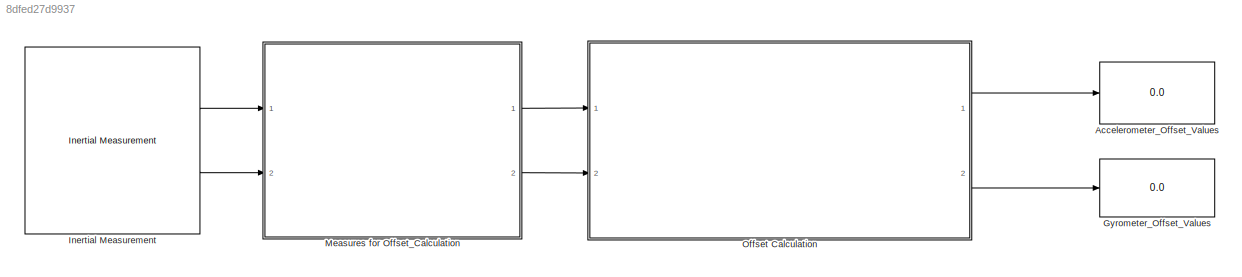
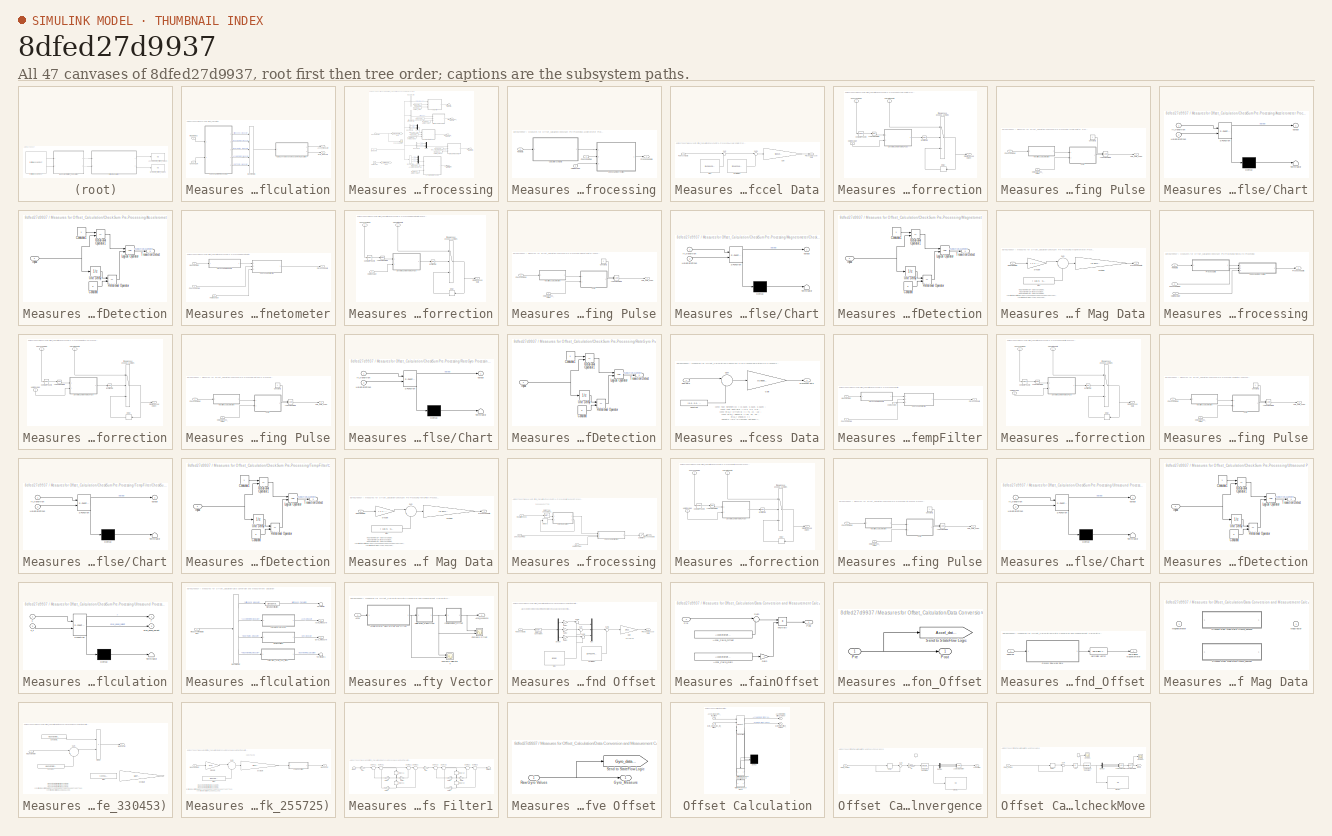
[diagram: thumbnail index - all 47 canvases of the model, root first then tree order]
MODEL slx_8dfed27d9937
KIND model
BLOCK [Display] Accelerometer_Offset_Values
  Decimation = 3
  Ports = [1]
BLOCK [Display] Gyrometer_Offset_Values
  Decimation = 3
  Ports = [1]
BLOCK [Reference] Inertial Measurement  REF=AR_Drone_2_Library/Inertial Measurement
  Ports = [0, 2]
  SourceBlock = AR_Drone_2_Library/Inertial Measurement
  Ts = 1/400
BLOCK [SubSystem] Measures for Offset_Calculation
  AncestorBlock = Navigation_KF_Lib/Navigation
  Ports = [2, 2]
  RequestExecContextInheritance = off
BLOCK [Outport] Measures for Offset_Calculation/Accel_Measure
  IconDisplay = Port number
BLOCK [BusCreator] Measures for Offset_Calculation/Bus Creator1
  DisplayOption = bar
  Inputs = 5
  Ports = [5, 1]
BLOCK [Inport] Measures for Offset_Calculation/CheckSum
  IconDisplay = Port number
  Port = 2
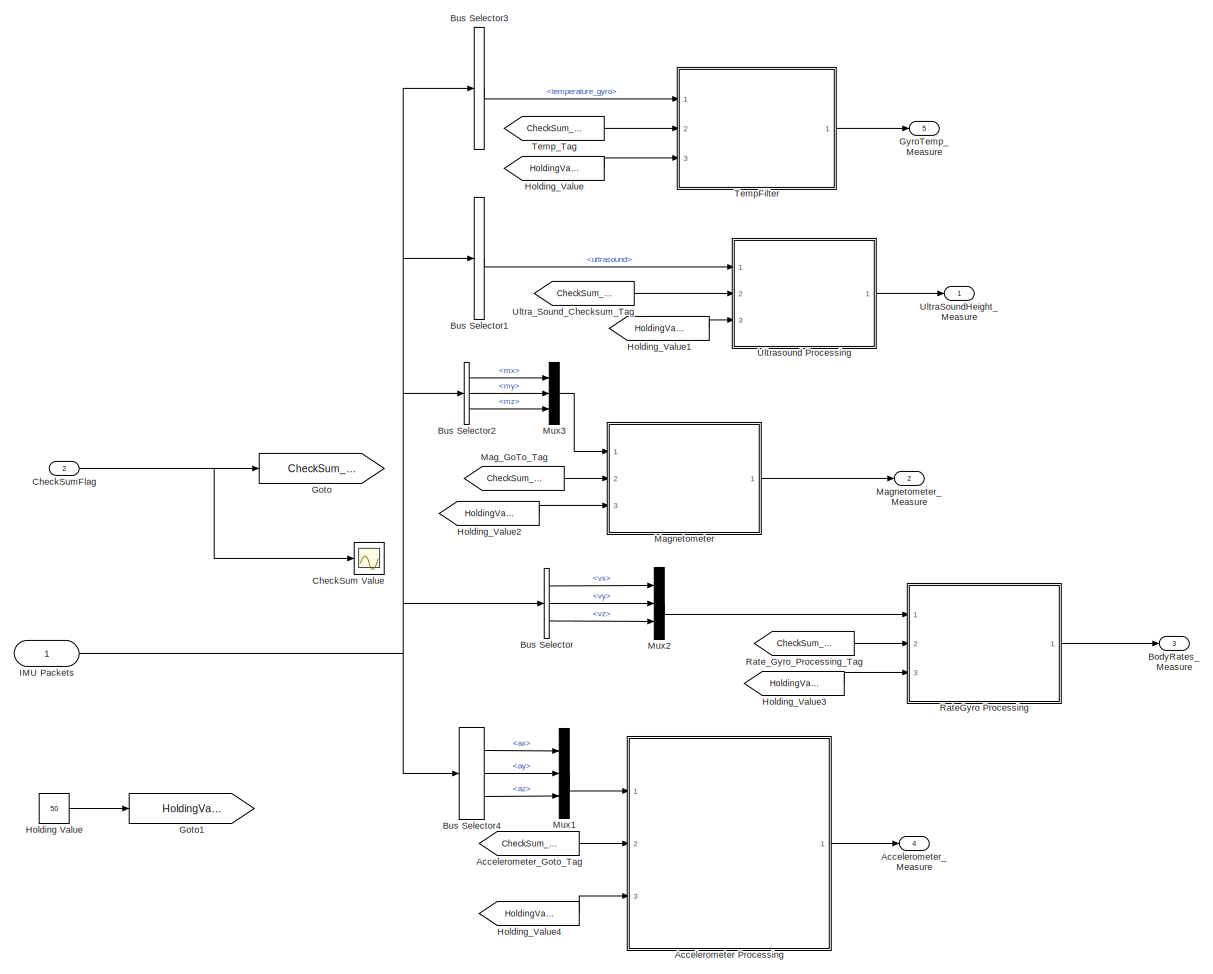
[diagram: Measures for Offset_Calculation/CheckSum Pre-Processing - part 1/1, most of the canvas]
BLOCK [SubSystem] Measures for Offset_Calculation/CheckSum Pre-Processing
  Ports = [2, 5]
  RTWSystemCode = Inline
  RequestExecContextInheritance = off
  TreatAsAtomicUnit = on
BLOCK [SubSystem] Measures for Offset_Calculation/CheckSum Pre-Processing/Accelerometer Processing
  Ports = [3, 1]
  RequestExecContextInheritance = off
BLOCK [SubSystem] Measures for Offset_Calculation/CheckSum Pre-Processing/Accelerometer Processing/Calculate Accel Data
  Commented = through
  Ports = [1, 1]
  RequestExecContextInheritance = off
BLOCK [Constant] Measures for Offset_Calculation/CheckSum Pre-Processing/Accelerometer Processing/Calculate Accel Data/Bias
  Value = [0 4096 4096]
BLOCK [Gain] Measures for Offset_Calculation/CheckSum Pre-Processing/Accelerometer Processing/Calculate Accel Data/Gain
  Gain = [0.001953125, 0.001953125, 0.001953125]
  OutDataTypeStr = Inherit: Inherit via internal rule
  ParamDataTypeStr = Inherit: Inherit via internal rule
  SaturateOnIntegerOverflow = off
BLOCK [Constant] Measures for Offset_Calculation/CheckSum Pre-Processing/Accelerometer Processing/Calculate Accel Data/Neutral Bias
  Value = [2048 2048 2048]
BLOCK [Outport] Measures for Offset_Calculation/CheckSum Pre-Processing/Accelerometer Processing/Calculate Accel Data/Processed Accel Data
  IconDisplay = Port number
BLOCK [Inport] Measures for Offset_Calculation/CheckSum Pre-Processing/Accelerometer Processing/Calculate Accel Data/Raw Accel Data
  IconDisplay = Port number
BLOCK [Sum] Measures for Offset_Calculation/CheckSum Pre-Processing/Accelerometer Processing/Calculate Accel Data/Sum
  IconShape = round
  InputSameDT = off
  Inputs = |-+
  OutDataTypeStr = Inherit: Inherit via internal rule
  Ports = [2, 1]
  SaturateOnIntegerOverflow = off
BLOCK [Sum] Measures for Offset_Calculation/CheckSum Pre-Processing/Accelerometer Processing/Calculate Accel Data/Sum1
  IconShape = round
  InputSameDT = off
  Inputs = |+-
  OutDataTypeStr = Inherit: Inherit via internal rule
  Ports = [2, 1]
  SaturateOnIntegerOverflow = off
BLOCK [SubSystem] Measures for Offset_Calculation/CheckSum Pre-Processing/Accelerometer Processing/CheckSum Correction
  Ports = [3, 1]
  RequestExecContextInheritance = off
BLOCK [Inport] Measures for Offset_Calculation/CheckSum Pre-Processing/Accelerometer Processing/CheckSum Correction/CalculatedData
  IconDisplay = Port number
BLOCK [Inport] Measures for Offset_Calculation/CheckSum Pre-Processing/Accelerometer Processing/CheckSum Correction/CheckSumFlag
  IconDisplay = Port number
  Port = 2
BLOCK [Reference] Measures for Offset_Calculation/CheckSum Pre-Processing/Accelerometer Processing/CheckSum Correction/Compare To Zero  REF=simulink/Logic and Bit
Operations/Compare
To Zero
  OutDataTypeStr = boolean
  Ports = [1, 1]
  SourceBlock = simulink/Logic and Bit\nOperations/Compare\nTo Zero
  SourceType = Compare To Zero
  ZeroCross = on
  relop = >
BLOCK [Delay] Measures for Offset_Calculation/CheckSum Pre-Processing/Accelerometer Processing/CheckSum Correction/Delay
  DelayLength = 3
  InitialCondition = 0
  InputPortMap = u0
  Ports = [1, 1]
BLOCK [SubSystem] Measures for Offset_Calculation/CheckSum Pre-Processing/Accelerometer Processing/CheckSum Correction/Generate Sample Holding Pulse
  Ports = [2, 1]
  RequestExecContextInheritance = off
BLOCK [SubSystem] Measures for Offset_Calculation/CheckSum Pre-Processing/Accelerometer Processing/CheckSum Correction/Generate Sample Holding Pulse/Chart
  ErrorFcn = Stateflow.Translate.translate
  PermitHierarchicalResolution = ExplicitOnly
  Ports = [2, 1]
  RequestExecContextInheritance = off
  SFBlockType = Chart
  TreatAsAtomicUnit = on
BLOCK [Demux] Measures for Offset_Calculation/CheckSum Pre-Processing/Accelerometer Processing/CheckSum Correction/Generate Sample Holding Pulse/Chart/ Demux 
  Outputs = 1
  Ports = [1, 1]
BLOCK [S-Function] Measures for Offset_Calculation/CheckSum Pre-Processing/Accelerometer Processing/CheckSum Correction/Generate Sample Holding Pulse/Chart/ SFunction 
  EnableBusSupport = on
  FunctionName = sf_sfun
  PortCounts = [2 2]
  Ports = [2, 2]
  Tag = Stateflow S-Function Get_Horizontal_Measures 2
BLOCK [Terminator] Measures for Offset_Calculation/CheckSum Pre-Processing/Accelerometer Processing/CheckSum Correction/Generate Sample Holding Pulse/Chart/ Terminator 
BLOCK [Inport] Measures for Offset_Calculation/CheckSum Pre-Processing/Accelerometer Processing/CheckSum Correction/Generate Sample Holding Pulse/Chart/HoldDataTicks
  IconDisplay = Port number
  Port = 2
BLOCK [Inport] Measures for Offset_Calculation/CheckSum Pre-Processing/Accelerometer Processing/CheckSum Correction/Generate Sample Holding Pulse/Chart/if_transition
  IconDisplay = Port number
BLOCK [Outport] Measures for Offset_Calculation/CheckSum Pre-Processing/Accelerometer Processing/CheckSum Correction/Generate Sample Holding Pulse/Chart/output
  IconDisplay = Port number
BLOCK [Inport] Measures for Offset_Calculation/CheckSum Pre-Processing/Accelerometer Processing/CheckSum Correction/Generate Sample Holding Pulse/CheckSumFlag
  IconDisplay = Port number
BLOCK [Constant] Measures for Offset_Calculation/CheckSum Pre-Processing/Accelerometer Processing/CheckSum Correction/Generate Sample Holding Pulse/Constant2
BLOCK [Inport] Measures for Offset_Calculation/CheckSum Pre-Processing/Accelerometer Processing/CheckSum Correction/Generate Sample Holding Pulse/HoldDataTicks_Value
  IconDisplay = Port number
  Port = 2
BLOCK [Outport] Measures for Offset_Calculation/CheckSum Pre-Processing/Accelerometer Processing/CheckSum Correction/Generate Sample Holding Pulse/Hold_Data_Pulse
  IconDisplay = Port number
BLOCK [Logic] Measures for Offset_Calculation/CheckSum Pre-Processing/Accelerometer Processing/CheckSum Correction/Generate Sample Holding Pulse/Logical Operator1
  AllPortsSameDT = off
  OutDataTypeStr = boolean
  Ports = [2, 1]
BLOCK [SubSystem] Measures for Offset_Calculation/CheckSum Pre-Processing/Accelerometer Processing/CheckSum Correction/Generate Sample Holding Pulse/Transition Logic Detection
  Ports = [1, 1]
  RequestExecContextInheritance = off
BLOCK [Constant] Measures for Offset_Calculation/CheckSum Pre-Processing/Accelerometer Processing/CheckSum Correction/Generate Sample Holding Pulse/Transition Logic Detection/Constant
  Value = 0
BLOCK [Constant] Measures for Offset_Calculation/CheckSum Pre-Processing/Accelerometer Processing/CheckSum Correction/Generate Sample Holding Pulse/Transition Logic Detection/Constant1
BLOCK [Inport] Measures for Offset_Calculation/CheckSum Pre-Processing/Accelerometer Processing/CheckSum Correction/Generate Sample Holding Pulse/Transition Logic Detection/Input
  IconDisplay = Port number
BLOCK [Logic] Measures for Offset_Calculation/CheckSum Pre-Processing/Accelerometer Processing/CheckSum Correction/Generate Sample Holding Pulse/Transition Logic Detection/Logical Operator
  AllPortsSameDT = off
  OutDataTypeStr = boolean
  Ports = [2, 1]
BLOCK [RelationalOperator] Measures for Offset_Calculation/CheckSum Pre-Processing/Accelerometer Processing/CheckSum Correction/Generate Sample Holding Pulse/Transition Logic Detection/Relational Operator
  InputSameDT = off
  Operator = ==
  OutDataTypeStr = boolean
  Ports = [2, 1]
BLOCK [RelationalOperator] Measures for Offset_Calculation/CheckSum Pre-Processing/Accelerometer Processing/CheckSum Correction/Generate Sample Holding Pulse/Transition Logic Detection/Relational Operator1
  InputSameDT = off
  Operator = ==
  OutDataTypeStr = boolean
  Ports = [2, 1]
BLOCK [Outport] Measures for Offset_Calculation/CheckSum Pre-Processing/Accelerometer Processing/CheckSum Correction/Generate Sample Holding Pulse/Transition Logic Detection/Transition Detect
  IconDisplay = Port number
BLOCK [UnitDelay] Measures for Offset_Calculation/CheckSum Pre-Processing/Accelerometer Processing/CheckSum Correction/Generate Sample Holding Pulse/Transition Logic Detection/Unit Delay
  InputProcessing = Elements as channels (sample based)
  SampleTime = -1
BLOCK [Inport] Measures for Offset_Calculation/CheckSum Pre-Processing/Accelerometer Processing/CheckSum Correction/Holding Value
  IconDisplay = Port number
  Port = 3
BLOCK [Switch] Measures for Offset_Calculation/CheckSum Pre-Processing/Accelerometer Processing/CheckSum Correction/If True, we have good data, If false, we have bad data, With bad data, use previous good data from N samples ago and hold it on that value for M samples
  Criteria = u2 > Threshold
  InputSameDT = off
  SaturateOnIntegerOverflow = off
BLOCK [Logic] Measures for Offset_Calculation/CheckSum Pre-Processing/Accelerometer Processing/CheckSum Correction/Invert Logic
  AllPortsSameDT = off
  Operator = NOT
  OutDataTypeStr = boolean
  Ports = [1, 1]
BLOCK [Logic] Measures for Offset_Calculation/CheckSum Pre-Processing/Accelerometer Processing/CheckSum Correction/Logical Operator1
  AllPortsSameDT = off
  Operator = NOT
  OutDataTypeStr = boolean
  Ports = [1, 1]
BLOCK [Outport] Measures for Offset_Calculation/CheckSum Pre-Processing/Accelerometer Processing/CheckSum Correction/Pre-Processed Height
  IconDisplay = Port number
BLOCK [Inport] Measures for Offset_Calculation/CheckSum Pre-Processing/Accelerometer Processing/CheckSum Flag
  IconDisplay = Port number
  Port = 2
BLOCK [Inport] Measures for Offset_Calculation/CheckSum Pre-Processing/Accelerometer Processing/Holding Value
  IconDisplay = Port number
  Port = 3
BLOCK [Outport] Measures for Offset_Calculation/CheckSum Pre-Processing/Accelerometer Processing/Processed Data
  IconDisplay = Port number
BLOCK [Inport] Measures for Offset_Calculation/CheckSum Pre-Processing/Accelerometer Processing/Raw Data
  IconDisplay = Port number
BLOCK [From] Measures for Offset_Calculation/CheckSum Pre-Processing/Accelerometer_Goto_Tag
  GotoTag = CheckSum_Tag
BLOCK [Outport] Measures for Offset_Calculation/CheckSum Pre-Processing/Accelerometer_Measure
  IconDisplay = Port number
  Port = 4
BLOCK [Outport] Measures for Offset_Calculation/CheckSum Pre-Processing/BodyRates_Measure
  IconDisplay = Port number
  Port = 3
BLOCK [BusSelector] Measures for Offset_Calculation/CheckSum Pre-Processing/Bus Selector
  OutputSignals = vx,vy,vz
  Ports = [1, 3]
BLOCK [BusSelector] Measures for Offset_Calculation/CheckSum Pre-Processing/Bus Selector1
  OutputSignals = ultrasound
  Ports = [1, 1]
BLOCK [BusSelector] Measures for Offset_Calculation/CheckSum Pre-Processing/Bus Selector2
  OutputSignals = mx,my,mz
  Ports = [1, 3]
BLOCK [BusSelector] Measures for Offset_Calculation/CheckSum Pre-Processing/Bus Selector3
  OutputSignals = temperature_gyro
  Ports = [1, 1]
BLOCK [BusSelector] Measures for Offset_Calculation/CheckSum Pre-Processing/Bus Selector4
  OutputSignals = ax,ay,az
  Ports = [1, 3]
BLOCK [Scope] Measures for Offset_Calculation/CheckSum Pre-Processing/CheckSum Value
  Commented = on
  DataFormat = StructureWithTime
  Floating = off
  LimitDataPoints = off
  NumInputPorts = 1
  Ports = [1]
  SampleTime = 0
  SaveName = CheckSum
  SaveToWorkspace = on
  ShowLegends = off
  YMax = 2500
  YMin = 0
  ZoomMode = xonly
BLOCK [Inport] Measures for Offset_Calculation/CheckSum Pre-Processing/CheckSumFlag
  IconDisplay = Port number
  Port = 2
BLOCK [Goto] Measures for Offset_Calculation/CheckSum Pre-Processing/Goto
  GotoTag = CheckSum_Tag
  IconDisplay = Signal name
BLOCK [Goto] Measures for Offset_Calculation/CheckSum Pre-Processing/Goto1
  GotoTag = HoldingValue
  IconDisplay = Signal name
BLOCK [Outport] Measures for Offset_Calculation/CheckSum Pre-Processing/GyroTemp_Measure
  IconDisplay = Port number
  Port = 5
BLOCK [Constant] Measures for Offset_Calculation/CheckSum Pre-Processing/Holding Value
  Value = 50
BLOCK [From] Measures for Offset_Calculation/CheckSum Pre-Processing/Holding_Value
  GotoTag = HoldingValue
BLOCK [From] Measures for Offset_Calculation/CheckSum Pre-Processing/Holding_Value1
  GotoTag = HoldingValue
BLOCK [From] Measures for Offset_Calculation/CheckSum Pre-Processing/Holding_Value2
  GotoTag = HoldingValue
BLOCK [From] Measures for Offset_Calculation/CheckSum Pre-Processing/Holding_Value3
  GotoTag = HoldingValue
BLOCK [From] Measures for Offset_Calculation/CheckSum Pre-Processing/Holding_Value4
  GotoTag = HoldingValue
BLOCK [Inport] Measures for Offset_Calculation/CheckSum Pre-Processing/IMU Packets
  IconDisplay = Port number
BLOCK [From] Measures for Offset_Calculation/CheckSum Pre-Processing/Mag_GoTo_Tag
  GotoTag = CheckSum_Tag
BLOCK [SubSystem] Measures for Offset_Calculation/CheckSum Pre-Processing/Magnetometer
  Ports = [3, 1]
  RequestExecContextInheritance = off
BLOCK [SubSystem] Measures for Offset_Calculation/CheckSum Pre-Processing/Magnetometer/CheckSum Correction
  Ports = [3, 1]
  RequestExecContextInheritance = off
BLOCK [Inport] Measures for Offset_Calculation/CheckSum Pre-Processing/Magnetometer/CheckSum Correction/CalculatedData
  IconDisplay = Port number
BLOCK [Inport] Measures for Offset_Calculation/CheckSum Pre-Processing/Magnetometer/CheckSum Correction/CheckSumFlag
  IconDisplay = Port number
  Port = 2
BLOCK [Reference] Measures for Offset_Calculation/CheckSum Pre-Processing/Magnetometer/CheckSum Correction/Compare To Zero  REF=simulink/Logic and Bit
Operations/Compare
To Zero
  OutDataTypeStr = boolean
  Ports = [1, 1]
  SourceBlock = simulink/Logic and Bit\nOperations/Compare\nTo Zero
  SourceType = Compare To Zero
  ZeroCross = on
  relop = >
BLOCK [Delay] Measures for Offset_Calculation/CheckSum Pre-Processing/Magnetometer/CheckSum Correction/Delay
  DelayLength = 3
  InitialCondition = 0
  InputPortMap = u0
  Ports = [1, 1]
BLOCK [SubSystem] Measures for Offset_Calculation/CheckSum Pre-Processing/Magnetometer/CheckSum Correction/Generate Sample Holding Pulse
  Ports = [2, 1]
  RequestExecContextInheritance = off
BLOCK [SubSystem] Measures for Offset_Calculation/CheckSum Pre-Processing/Magnetometer/CheckSum Correction/Generate Sample Holding Pulse/Chart
  ErrorFcn = Stateflow.Translate.translate
  PermitHierarchicalResolution = ExplicitOnly
  Ports = [2, 1]
  RequestExecContextInheritance = off
  SFBlockType = Chart
  TreatAsAtomicUnit = on
BLOCK [Demux] Measures for Offset_Calculation/CheckSum Pre-Processing/Magnetometer/CheckSum Correction/Generate Sample Holding Pulse/Chart/ Demux 
  Outputs = 1
  Ports = [1, 1]
BLOCK [S-Function] Measures for Offset_Calculation/CheckSum Pre-Processing/Magnetometer/CheckSum Correction/Generate Sample Holding Pulse/Chart/ SFunction 
  EnableBusSupport = on
  FunctionName = sf_sfun
  PortCounts = [2 2]
  Ports = [2, 2]
  Tag = Stateflow S-Function Get_Horizontal_Measures 5
BLOCK [Terminator] Measures for Offset_Calculation/CheckSum Pre-Processing/Magnetometer/CheckSum Correction/Generate Sample Holding Pulse/Chart/ Terminator 
BLOCK [Inport] Measures for Offset_Calculation/CheckSum Pre-Processing/Magnetometer/CheckSum Correction/Generate Sample Holding Pulse/Chart/HoldDataTicks
  IconDisplay = Port number
  Port = 2
BLOCK [Inport] Measures for Offset_Calculation/CheckSum Pre-Processing/Magnetometer/CheckSum Correction/Generate Sample Holding Pulse/Chart/if_transition
  IconDisplay = Port number
BLOCK [Outport] Measures for Offset_Calculation/CheckSum Pre-Processing/Magnetometer/CheckSum Correction/Generate Sample Holding Pulse/Chart/output
  IconDisplay = Port number
BLOCK [Inport] Measures for Offset_Calculation/CheckSum Pre-Processing/Magnetometer/CheckSum Correction/Generate Sample Holding Pulse/CheckSumFlag
  IconDisplay = Port number
BLOCK [Constant] Measures for Offset_Calculation/CheckSum Pre-Processing/Magnetometer/CheckSum Correction/Generate Sample Holding Pulse/Constant2
BLOCK [Inport] Measures for Offset_Calculation/CheckSum Pre-Processing/Magnetometer/CheckSum Correction/Generate Sample Holding Pulse/HoldDataTicks_Value
  IconDisplay = Port number
  Port = 2
BLOCK [Outport] Measures for Offset_Calculation/CheckSum Pre-Processing/Magnetometer/CheckSum Correction/Generate Sample Holding Pulse/Hold_Data_Pulse
  IconDisplay = Port number
BLOCK [Logic] Measures for Offset_Calculation/CheckSum Pre-Processing/Magnetometer/CheckSum Correction/Generate Sample Holding Pulse/Logical Operator1
  AllPortsSameDT = off
  OutDataTypeStr = boolean
  Ports = [2, 1]
BLOCK [SubSystem] Measures for Offset_Calculation/CheckSum Pre-Processing/Magnetometer/CheckSum Correction/Generate Sample Holding Pulse/Transition Logic Detection
  Ports = [1, 1]
  RequestExecContextInheritance = off
BLOCK [Constant] Measures for Offset_Calculation/CheckSum Pre-Processing/Magnetometer/CheckSum Correction/Generate Sample Holding Pulse/Transition Logic Detection/Constant
  Value = 0
BLOCK [Constant] Measures for Offset_Calculation/CheckSum Pre-Processing/Magnetometer/CheckSum Correction/Generate Sample Holding Pulse/Transition Logic Detection/Constant1
BLOCK [Inport] Measures for Offset_Calculation/CheckSum Pre-Processing/Magnetometer/CheckSum Correction/Generate Sample Holding Pulse/Transition Logic Detection/Input
  IconDisplay = Port number
BLOCK [Logic] Measures for Offset_Calculation/CheckSum Pre-Processing/Magnetometer/CheckSum Correction/Generate Sample Holding Pulse/Transition Logic Detection/Logical Operator
  AllPortsSameDT = off
  OutDataTypeStr = boolean
  Ports = [2, 1]
BLOCK [RelationalOperator] Measures for Offset_Calculation/CheckSum Pre-Processing/Magnetometer/CheckSum Correction/Generate Sample Holding Pulse/Transition Logic Detection/Relational Operator
  InputSameDT = off
  Operator = ==
  OutDataTypeStr = boolean
  Ports = [2, 1]
BLOCK [RelationalOperator] Measures for Offset_Calculation/CheckSum Pre-Processing/Magnetometer/CheckSum Correction/Generate Sample Holding Pulse/Transition Logic Detection/Relational Operator1
  InputSameDT = off
  Operator = ==
  OutDataTypeStr = boolean
  Ports = [2, 1]
BLOCK [Outport] Measures for Offset_Calculation/CheckSum Pre-Processing/Magnetometer/CheckSum Correction/Generate Sample Holding Pulse/Transition Logic Detection/Transition Detect
  IconDisplay = Port number
BLOCK [UnitDelay] Measures for Offset_Calculation/CheckSum Pre-Processing/Magnetometer/CheckSum Correction/Generate Sample Holding Pulse/Transition Logic Detection/Unit Delay
  InputProcessing = Elements as channels (sample based)
  SampleTime = -1
BLOCK [Inport] Measures for Offset_Calculation/CheckSum Pre-Processing/Magnetometer/CheckSum Correction/Holding Value
  IconDisplay = Port number
  Port = 3
BLOCK [Switch] Measures for Offset_Calculation/CheckSum Pre-Processing/Magnetometer/CheckSum Correction/If True, we have good data, If false, we have bad data, With bad data, use previous good data from N samples ago and hold it on that value for M samples
  Criteria = u2 > Threshold
  InputSameDT = off
  SaturateOnIntegerOverflow = off
BLOCK [Logic] Measures for Offset_Calculation/CheckSum Pre-Processing/Magnetometer/CheckSum Correction/Invert Logic
  AllPortsSameDT = off
  Operator = NOT
  OutDataTypeStr = boolean
  Ports = [1, 1]
BLOCK [Logic] Measures for Offset_Calculation/CheckSum Pre-Processing/Magnetometer/CheckSum Correction/Logical Operator1
  AllPortsSameDT = off
  Operator = NOT
  OutDataTypeStr = boolean
  Ports = [1, 1]
BLOCK [Outport] Measures for Offset_Calculation/CheckSum Pre-Processing/Magnetometer/CheckSum Correction/Pre-Processed Data
  IconDisplay = Port number
BLOCK [Inport] Measures for Offset_Calculation/CheckSum Pre-Processing/Magnetometer/CheckSum Flag
  IconDisplay = Port number
  Port = 2
BLOCK [Inport] Measures for Offset_Calculation/CheckSum Pre-Processing/Magnetometer/Holding Value
  IconDisplay = Port number
  Port = 3
BLOCK [Inport] Measures for Offset_Calculation/CheckSum Pre-Processing/Magnetometer/Magnetometer
  IconDisplay = Port number
BLOCK [SubSystem] Measures for Offset_Calculation/CheckSum Pre-Processing/Magnetometer/Process Raw Mag Data
  Commented = through
  Ports = [1, 1]
  RequestExecContextInheritance = off
BLOCK [Constant] Measures for Offset_Calculation/CheckSum Pre-Processing/Magnetometer/Process Raw Mag Data/Bias
  Value = [ 118.0, -65.0, 110.0 ]
BLOCK [Inport] Measures for Offset_Calculation/CheckSum Pre-Processing/Magnetometer/Process Raw Mag Data/Magnetometer
  IconDisplay = Port number
BLOCK [Outport] Measures for Offset_Calculation/CheckSum Pre-Processing/Magnetometer/Process Raw Mag Data/ProcessedData
  IconDisplay = Port number
BLOCK [Sum] Measures for Offset_Calculation/CheckSum Pre-Processing/Magnetometer/Process Raw Mag Data/Sum
  IconShape = round
  InputSameDT = off
  Inputs = |+-
  OutDataTypeStr = Inherit: Inherit via internal rule
  Ports = [2, 1]
  SaturateOnIntegerOverflow = off
BLOCK [Gain] Measures for Offset_Calculation/CheckSum Pre-Processing/Magnetometer/Process Raw Mag Data/postGain
  Gain = [0.0071492608, 0.0070882491, 0.0074057781]
  OutDataTypeStr = Inherit: Inherit via internal rule
  ParamDataTypeStr = Inherit: Inherit via internal rule
  SaturateOnIntegerOverflow = off
BLOCK [Gain] Measures for Offset_Calculation/CheckSum Pre-Processing/Magnetometer/Process Raw Mag Data/preGain
  Gain = [-1 1 -1]
  OutDataTypeStr = Inherit: Inherit via internal rule
  ParamDataTypeStr = Inherit: Inherit via internal rule
  SaturateOnIntegerOverflow = off
BLOCK [Outport] Measures for Offset_Calculation/CheckSum Pre-Processing/Magnetometer/Processed Data
  IconDisplay = Port number
BLOCK [Outport] Measures for Offset_Calculation/CheckSum Pre-Processing/Magnetometer_Measure
  IconDisplay = Port number
  Port = 2
BLOCK [Mux] Measures for Offset_Calculation/CheckSum Pre-Processing/Mux1
  DisplayOption = bar
  Inputs = 3
  Ports = [3, 1]
BLOCK [Mux] Measures for Offset_Calculation/CheckSum Pre-Processing/Mux2
  DisplayOption = bar
  Inputs = 3
  Ports = [3, 1]
BLOCK [Mux] Measures for Offset_Calculation/CheckSum Pre-Processing/Mux3
  DisplayOption = bar
  Inputs = 3
  Ports = [3, 1]
BLOCK [SubSystem] Measures for Offset_Calculation/CheckSum Pre-Processing/RateGyro Processing
  Ports = [3, 1]
  RequestExecContextInheritance = off
BLOCK [SubSystem] Measures for Offset_Calculation/CheckSum Pre-Processing/RateGyro Processing/CheckSum Correction
  Ports = [3, 1]
  RequestExecContextInheritance = off
BLOCK [Inport] Measures for Offset_Calculation/CheckSum Pre-Processing/RateGyro Processing/CheckSum Correction/CalculatedData
  IconDisplay = Port number
BLOCK [Inport] Measures for Offset_Calculation/CheckSum Pre-Processing/RateGyro Processing/CheckSum Correction/CheckSumFlag
  IconDisplay = Port number
  Port = 2
BLOCK [Reference] Measures for Offset_Calculation/CheckSum Pre-Processing/RateGyro Processing/CheckSum Correction/Compare To Zero  REF=simulink/Logic and Bit
Operations/Compare
To Zero
  OutDataTypeStr = boolean
  Ports = [1, 1]
  SourceBlock = simulink/Logic and Bit\nOperations/Compare\nTo Zero
  SourceType = Compare To Zero
  ZeroCross = on
  relop = >
BLOCK [Delay] Measures for Offset_Calculation/CheckSum Pre-Processing/RateGyro Processing/CheckSum Correction/Delay
  DelayLength = 3
  InitialCondition = 0
  InputPortMap = u0
  Ports = [1, 1]
BLOCK [SubSystem] Measures for Offset_Calculation/CheckSum Pre-Processing/RateGyro Processing/CheckSum Correction/Generate Sample Holding Pulse
  Ports = [2, 1]
  RequestExecContextInheritance = off
BLOCK [SubSystem] Measures for Offset_Calculation/CheckSum Pre-Processing/RateGyro Processing/CheckSum Correction/Generate Sample Holding Pulse/Chart
  ErrorFcn = Stateflow.Translate.translate
  PermitHierarchicalResolution = ExplicitOnly
  Ports = [2, 1]
  RequestExecContextInheritance = off
  SFBlockType = Chart
  TreatAsAtomicUnit = on
BLOCK [Demux] Measures for Offset_Calculation/CheckSum Pre-Processing/RateGyro Processing/CheckSum Correction/Generate Sample Holding Pulse/Chart/ Demux 
  Outputs = 1
  Ports = [1, 1]
BLOCK [S-Function] Measures for Offset_Calculation/CheckSum Pre-Processing/RateGyro Processing/CheckSum Correction/Generate Sample Holding Pulse/Chart/ SFunction 
  EnableBusSupport = on
  FunctionName = sf_sfun
  PortCounts = [2 2]
  Ports = [2, 2]
  Tag = Stateflow S-Function Get_Horizontal_Measures 3
BLOCK [Terminator] Measures for Offset_Calculation/CheckSum Pre-Processing/RateGyro Processing/CheckSum Correction/Generate Sample Holding Pulse/Chart/ Terminator 
BLOCK [Inport] Measures for Offset_Calculation/CheckSum Pre-Processing/RateGyro Processing/CheckSum Correction/Generate Sample Holding Pulse/Chart/HoldDataTicks
  IconDisplay = Port number
  Port = 2
BLOCK [Inport] Measures for Offset_Calculation/CheckSum Pre-Processing/RateGyro Processing/CheckSum Correction/Generate Sample Holding Pulse/Chart/if_transition
  IconDisplay = Port number
BLOCK [Outport] Measures for Offset_Calculation/CheckSum Pre-Processing/RateGyro Processing/CheckSum Correction/Generate Sample Holding Pulse/Chart/output
  IconDisplay = Port number
BLOCK [Inport] Measures for Offset_Calculation/CheckSum Pre-Processing/RateGyro Processing/CheckSum Correction/Generate Sample Holding Pulse/CheckSumFlag
  IconDisplay = Port number
BLOCK [Constant] Measures for Offset_Calculation/CheckSum Pre-Processing/RateGyro Processing/CheckSum Correction/Generate Sample Holding Pulse/Constant2
BLOCK [Inport] Measures for Offset_Calculation/CheckSum Pre-Processing/RateGyro Processing/CheckSum Correction/Generate Sample Holding Pulse/HoldDataTicks_Value
  IconDisplay = Port number
  Port = 2
BLOCK [Outport] Measures for Offset_Calculation/CheckSum Pre-Processing/RateGyro Processing/CheckSum Correction/Generate Sample Holding Pulse/Hold_Data_Pulse
  IconDisplay = Port number
BLOCK [Logic] Measures for Offset_Calculation/CheckSum Pre-Processing/RateGyro Processing/CheckSum Correction/Generate Sample Holding Pulse/Logical Operator1
  AllPortsSameDT = off
  OutDataTypeStr = boolean
  Ports = [2, 1]
BLOCK [SubSystem] Measures for Offset_Calculation/CheckSum Pre-Processing/RateGyro Processing/CheckSum Correction/Generate Sample Holding Pulse/Transition Logic Detection
  Ports = [1, 1]
  RequestExecContextInheritance = off
BLOCK [Constant] Measures for Offset_Calculation/CheckSum Pre-Processing/RateGyro Processing/CheckSum Correction/Generate Sample Holding Pulse/Transition Logic Detection/Constant
  Value = 0
BLOCK [Constant] Measures for Offset_Calculation/CheckSum Pre-Processing/RateGyro Processing/CheckSum Correction/Generate Sample Holding Pulse/Transition Logic Detection/Constant1
BLOCK [Inport] Measures for Offset_Calculation/CheckSum Pre-Processing/RateGyro Processing/CheckSum Correction/Generate Sample Holding Pulse/Transition Logic Detection/Input
  IconDisplay = Port number
BLOCK [Logic] Measures for Offset_Calculation/CheckSum Pre-Processing/RateGyro Processing/CheckSum Correction/Generate Sample Holding Pulse/Transition Logic Detection/Logical Operator
  AllPortsSameDT = off
  OutDataTypeStr = boolean
  Ports = [2, 1]
BLOCK [RelationalOperator] Measures for Offset_Calculation/CheckSum Pre-Processing/RateGyro Processing/CheckSum Correction/Generate Sample Holding Pulse/Transition Logic Detection/Relational Operator
  InputSameDT = off
  Operator = ==
  OutDataTypeStr = boolean
  Ports = [2, 1]
BLOCK [RelationalOperator] Measures for Offset_Calculation/CheckSum Pre-Processing/RateGyro Processing/CheckSum Correction/Generate Sample Holding Pulse/Transition Logic Detection/Relational Operator1
  InputSameDT = off
  Operator = ==
  OutDataTypeStr = boolean
  Ports = [2, 1]
BLOCK [Outport] Measures for Offset_Calculation/CheckSum Pre-Processing/RateGyro Processing/CheckSum Correction/Generate Sample Holding Pulse/Transition Logic Detection/Transition Detect
  IconDisplay = Port number
BLOCK [UnitDelay] Measures for Offset_Calculation/CheckSum Pre-Processing/RateGyro Processing/CheckSum Correction/Generate Sample Holding Pulse/Transition Logic Detection/Unit Delay
  InputProcessing = Elements as channels (sample based)
  SampleTime = -1
BLOCK [Inport] Measures for Offset_Calculation/CheckSum Pre-Processing/RateGyro Processing/CheckSum Correction/Holding Value
  IconDisplay = Port number
  Port = 3
BLOCK [Switch] Measures for Offset_Calculation/CheckSum Pre-Processing/RateGyro Processing/CheckSum Correction/If True, we have good data, If false, we have bad data, With bad data, use previous good data from N samples ago and hold it on that value for M samples
  Criteria = u2 > Threshold
  InputSameDT = off
  SaturateOnIntegerOverflow = off
BLOCK [Logic] Measures for Offset_Calculation/CheckSum Pre-Processing/RateGyro Processing/CheckSum Correction/Invert Logic
  AllPortsSameDT = off
  Operator = NOT
  OutDataTypeStr = boolean
  Ports = [1, 1]
BLOCK [Logic] Measures for Offset_Calculation/CheckSum Pre-Processing/RateGyro Processing/CheckSum Correction/Logical Operator1
  AllPortsSameDT = off
  Operator = NOT
  OutDataTypeStr = boolean
  Ports = [1, 1]
BLOCK [Outport] Measures for Offset_Calculation/CheckSum Pre-Processing/RateGyro Processing/CheckSum Correction/Pre-Processed Height
  IconDisplay = Port number
BLOCK [Inport] Measures for Offset_Calculation/CheckSum Pre-Processing/RateGyro Processing/CheckSum Flag
  IconDisplay = Port number
  Port = 2
BLOCK [Inport] Measures for Offset_Calculation/CheckSum Pre-Processing/RateGyro Processing/Holding Value
  IconDisplay = Port number
  Port = 3
BLOCK [SubSystem] Measures for Offset_Calculation/CheckSum Pre-Processing/RateGyro Processing/Process Data
  Commented = through
  Ports = [1, 1]
  RequestExecContextInheritance = off
BLOCK [Constant] Measures for Offset_Calculation/CheckSum Pre-Processing/RateGyro Processing/Process Data/Constant
  Value = [0.0, 0.0, 0.0]
BLOCK [Gain] Measures for Offset_Calculation/CheckSum Pre-Processing/RateGyro Processing/Process Data/Gain
  Gain = [0.0609, 0.0609, 0.0609]
  OutDataTypeStr = Inherit: Inherit via internal rule
  ParamDataTypeStr = Inherit: Inherit via internal rule
  SaturateOnIntegerOverflow = off
BLOCK [Outport] Measures for Offset_Calculation/CheckSum Pre-Processing/RateGyro Processing/Process Data/Processed Data
  IconDisplay = Port number
BLOCK [Inport] Measures for Offset_Calculation/CheckSum Pre-Processing/RateGyro Processing/Process Data/Raw Data
  IconDisplay = Port number
BLOCK [Sum] Measures for Offset_Calculation/CheckSum Pre-Processing/RateGyro Processing/Process Data/Sum
  IconShape = round
  InputSameDT = off
  Inputs = |++
  OutDataTypeStr = Inherit: Inherit via internal rule
  Ports = [2, 1]
  SaturateOnIntegerOverflow = off
BLOCK [Outport] Measures for Offset_Calculation/CheckSum Pre-Processing/RateGyro Processing/Processed Data
  IconDisplay = Port number
BLOCK [Inport] Measures for Offset_Calculation/CheckSum Pre-Processing/RateGyro Processing/Raw Data
  IconDisplay = Port number
BLOCK [From] Measures for Offset_Calculation/CheckSum Pre-Processing/Rate_Gyro_Processing_Tag
  GotoTag = CheckSum_Tag
BLOCK [SubSystem] Measures for Offset_Calculation/CheckSum Pre-Processing/TempFilter
  Ports = [3, 1]
  RequestExecContextInheritance = off
BLOCK [SubSystem] Measures for Offset_Calculation/CheckSum Pre-Processing/TempFilter/CheckSum Correction
  Ports = [3, 1]
  RequestExecContextInheritance = off
BLOCK [Inport] Measures for Offset_Calculation/CheckSum Pre-Processing/TempFilter/CheckSum Correction/CalculatedData
  IconDisplay = Port number
BLOCK [Inport] Measures for Offset_Calculation/CheckSum Pre-Processing/TempFilter/CheckSum Correction/CheckSumFlag
  IconDisplay = Port number
  Port = 2
BLOCK [Reference] Measures for Offset_Calculation/CheckSum Pre-Processing/TempFilter/CheckSum Correction/Compare To Zero  REF=simulink/Logic and Bit
Operations/Compare
To Zero
  OutDataTypeStr = boolean
  Ports = [1, 1]
  SourceBlock = simulink/Logic and Bit\nOperations/Compare\nTo Zero
  SourceType = Compare To Zero
  ZeroCross = on
  relop = >
BLOCK [Delay] Measures for Offset_Calculation/CheckSum Pre-Processing/TempFilter/CheckSum Correction/Delay
  DelayLength = 3
  InitialCondition = 0
  InputPortMap = u0
  Ports = [1, 1]
BLOCK [SubSystem] Measures for Offset_Calculation/CheckSum Pre-Processing/TempFilter/CheckSum Correction/Generate Sample Holding Pulse
  Ports = [2, 1]
  RequestExecContextInheritance = off
BLOCK [SubSystem] Measures for Offset_Calculation/CheckSum Pre-Processing/TempFilter/CheckSum Correction/Generate Sample Holding Pulse/Chart
  ErrorFcn = Stateflow.Translate.translate
  PermitHierarchicalResolution = ExplicitOnly
  Ports = [2, 1]
  RequestExecContextInheritance = off
  SFBlockType = Chart
  TreatAsAtomicUnit = on
BLOCK [Demux] Measures for Offset_Calculation/CheckSum Pre-Processing/TempFilter/CheckSum Correction/Generate Sample Holding Pulse/Chart/ Demux 
  Outputs = 1
  Ports = [1, 1]
BLOCK [S-Function] Measures for Offset_Calculation/CheckSum Pre-Processing/TempFilter/CheckSum Correction/Generate Sample Holding Pulse/Chart/ SFunction 
  EnableBusSupport = on
  FunctionName = sf_sfun
  PortCounts = [2 2]
  Ports = [2, 2]
  Tag = Stateflow S-Function Get_Horizontal_Measures 7
BLOCK [Terminator] Measures for Offset_Calculation/CheckSum Pre-Processing/TempFilter/CheckSum Correction/Generate Sample Holding Pulse/Chart/ Terminator 
BLOCK [Inport] Measures for Offset_Calculation/CheckSum Pre-Processing/TempFilter/CheckSum Correction/Generate Sample Holding Pulse/Chart/HoldDataTicks
  IconDisplay = Port number
  Port = 2
BLOCK [Inport] Measures for Offset_Calculation/CheckSum Pre-Processing/TempFilter/CheckSum Correction/Generate Sample Holding Pulse/Chart/if_transition
  IconDisplay = Port number
BLOCK [Outport] Measures for Offset_Calculation/CheckSum Pre-Processing/TempFilter/CheckSum Correction/Generate Sample Holding Pulse/Chart/output
  IconDisplay = Port number
BLOCK [Inport] Measures for Offset_Calculation/CheckSum Pre-Processing/TempFilter/CheckSum Correction/Generate Sample Holding Pulse/CheckSumFlag
  IconDisplay = Port number
BLOCK [Constant] Measures for Offset_Calculation/CheckSum Pre-Processing/TempFilter/CheckSum Correction/Generate Sample Holding Pulse/Constant2
BLOCK [Inport] Measures for Offset_Calculation/CheckSum Pre-Processing/TempFilter/CheckSum Correction/Generate Sample Holding Pulse/HoldDataTicks_Value
  IconDisplay = Port number
  Port = 2
BLOCK [Outport] Measures for Offset_Calculation/CheckSum Pre-Processing/TempFilter/CheckSum Correction/Generate Sample Holding Pulse/Hold_Data_Pulse
  IconDisplay = Port number
BLOCK [Logic] Measures for Offset_Calculation/CheckSum Pre-Processing/TempFilter/CheckSum Correction/Generate Sample Holding Pulse/Logical Operator1
  AllPortsSameDT = off
  OutDataTypeStr = boolean
  Ports = [2, 1]
BLOCK [SubSystem] Measures for Offset_Calculation/CheckSum Pre-Processing/TempFilter/CheckSum Correction/Generate Sample Holding Pulse/Transition Logic Detection
  Ports = [1, 1]
  RequestExecContextInheritance = off
BLOCK [Constant] Measures for Offset_Calculation/CheckSum Pre-Processing/TempFilter/CheckSum Correction/Generate Sample Holding Pulse/Transition Logic Detection/Constant
  Value = 0
BLOCK [Constant] Measures for Offset_Calculation/CheckSum Pre-Processing/TempFilter/CheckSum Correction/Generate Sample Holding Pulse/Transition Logic Detection/Constant1
BLOCK [Inport] Measures for Offset_Calculation/CheckSum Pre-Processing/TempFilter/CheckSum Correction/Generate Sample Holding Pulse/Transition Logic Detection/Input
  IconDisplay = Port number
BLOCK [Logic] Measures for Offset_Calculation/CheckSum Pre-Processing/TempFilter/CheckSum Correction/Generate Sample Holding Pulse/Transition Logic Detection/Logical Operator
  AllPortsSameDT = off
  OutDataTypeStr = boolean
  Ports = [2, 1]
BLOCK [RelationalOperator] Measures for Offset_Calculation/CheckSum Pre-Processing/TempFilter/CheckSum Correction/Generate Sample Holding Pulse/Transition Logic Detection/Relational Operator
  InputSameDT = off
  Operator = ==
  OutDataTypeStr = boolean
  Ports = [2, 1]
BLOCK [RelationalOperator] Measures for Offset_Calculation/CheckSum Pre-Processing/TempFilter/CheckSum Correction/Generate Sample Holding Pulse/Transition Logic Detection/Relational Operator1
  InputSameDT = off
  Operator = ==
  OutDataTypeStr = boolean
  Ports = [2, 1]
BLOCK [Outport] Measures for Offset_Calculation/CheckSum Pre-Processing/TempFilter/CheckSum Correction/Generate Sample Holding Pulse/Transition Logic Detection/Transition Detect
  IconDisplay = Port number
BLOCK [UnitDelay] Measures for Offset_Calculation/CheckSum Pre-Processing/TempFilter/CheckSum Correction/Generate Sample Holding Pulse/Transition Logic Detection/Unit Delay
  InputProcessing = Elements as channels (sample based)
  SampleTime = -1
BLOCK [Inport] Measures for Offset_Calculation/CheckSum Pre-Processing/TempFilter/CheckSum Correction/Holding Value
  IconDisplay = Port number
  Port = 3
BLOCK [Switch] Measures for Offset_Calculation/CheckSum Pre-Processing/TempFilter/CheckSum Correction/If True, we have good data, If false, we have bad data, With bad data, use previous good data from N samples ago and hold it on that value for M samples
  Criteria = u2 > Threshold
  InputSameDT = off
  SaturateOnIntegerOverflow = off
BLOCK [Logic] Measures for Offset_Calculation/CheckSum Pre-Processing/TempFilter/CheckSum Correction/Invert Logic
  AllPortsSameDT = off
  Operator = NOT
  OutDataTypeStr = boolean
  Ports = [1, 1]
BLOCK [Logic] Measures for Offset_Calculation/CheckSum Pre-Processing/TempFilter/CheckSum Correction/Logical Operator1
  AllPortsSameDT = off
  Operator = NOT
  OutDataTypeStr = boolean
  Ports = [1, 1]
BLOCK [Outport] Measures for Offset_Calculation/CheckSum Pre-Processing/TempFilter/CheckSum Correction/Pre-Processed Data
  IconDisplay = Port number
BLOCK [Inport] Measures for Offset_Calculation/CheckSum Pre-Processing/TempFilter/CheckSum Flag
  IconDisplay = Port number
  Port = 2
BLOCK [Inport] Measures for Offset_Calculation/CheckSum Pre-Processing/TempFilter/HoldingValue
  IconDisplay = Port number
  Port = 3
BLOCK [Inport] Measures for Offset_Calculation/CheckSum Pre-Processing/TempFilter/Magnetometer
  IconDisplay = Port number
BLOCK [SubSystem] Measures for Offset_Calculation/CheckSum Pre-Processing/TempFilter/Process Raw Mag Data
  Commented = through
  Ports = [1, 1]
  RequestExecContextInheritance = off
BLOCK [Constant] Measures for Offset_Calculation/CheckSum Pre-Processing/TempFilter/Process Raw Mag Data/Bias
  Value = [ 118.0, -65.0, 110.0 ]
BLOCK [Inport] Measures for Offset_Calculation/CheckSum Pre-Processing/TempFilter/Process Raw Mag Data/Magnetometer
  IconDisplay = Port number
BLOCK [Outport] Measures for Offset_Calculation/CheckSum Pre-Processing/TempFilter/Process Raw Mag Data/ProcessedData
  IconDisplay = Port number
BLOCK [Sum] Measures for Offset_Calculation/CheckSum Pre-Processing/TempFilter/Process Raw Mag Data/Sum
  IconShape = round
  InputSameDT = off
  Inputs = |+-
  OutDataTypeStr = Inherit: Inherit via internal rule
  Ports = [2, 1]
  SaturateOnIntegerOverflow = off
BLOCK [Gain] Measures for Offset_Calculation/CheckSum Pre-Processing/TempFilter/Process Raw Mag Data/postGain
  Gain = [0.0071492608, 0.0070882491, 0.0074057781]
  OutDataTypeStr = Inherit: Inherit via internal rule
  ParamDataTypeStr = Inherit: Inherit via internal rule
  SaturateOnIntegerOverflow = off
BLOCK [Gain] Measures for Offset_Calculation/CheckSum Pre-Processing/TempFilter/Process Raw Mag Data/preGain
  Gain = [-1 1 -1]
  OutDataTypeStr = Inherit: Inherit via internal rule
  ParamDataTypeStr = Inherit: Inherit via internal rule
  SaturateOnIntegerOverflow = off
BLOCK [Outport] Measures for Offset_Calculation/CheckSum Pre-Processing/TempFilter/Processed Data
  IconDisplay = Port number
BLOCK [From] Measures for Offset_Calculation/CheckSum Pre-Processing/Temp_Tag
  GotoTag = CheckSum_Tag
BLOCK [Outport] Measures for Offset_Calculation/CheckSum Pre-Processing/UltraSoundHeight_Measure
  IconDisplay = Port number
BLOCK [From] Measures for Offset_Calculation/CheckSum Pre-Processing/Ultra_Sound_Checksum_Tag
  GotoTag = CheckSum_Tag
BLOCK [SubSystem] Measures for Offset_Calculation/CheckSum Pre-Processing/Ultrasound Processing
  Ports = [3, 1]
  RequestExecContextInheritance = off
BLOCK [SubSystem] Measures for Offset_Calculation/CheckSum Pre-Processing/Ultrasound Processing/CheckSum Correction
  Ports = [3, 1]
  RequestExecContextInheritance = off
BLOCK [Inport] Measures for Offset_Calculation/CheckSum Pre-Processing/Ultrasound Processing/CheckSum Correction/CalculatedData
  IconDisplay = Port number
BLOCK [Inport] Measures for Offset_Calculation/CheckSum Pre-Processing/Ultrasound Processing/CheckSum Correction/CheckSumFlag
  IconDisplay = Port number
  Port = 2
BLOCK [Reference] Measures for Offset_Calculation/CheckSum Pre-Processing/Ultrasound Processing/CheckSum Correction/Compare To Zero  REF=simulink/Logic and Bit
Operations/Compare
To Zero
  OutDataTypeStr = boolean
  Ports = [1, 1]
  SourceBlock = simulink/Logic and Bit\nOperations/Compare\nTo Zero
  SourceType = Compare To Zero
  ZeroCross = on
  relop = >
BLOCK [Delay] Measures for Offset_Calculation/CheckSum Pre-Processing/Ultrasound Processing/CheckSum Correction/Delay
  DelayLength = 3
  InitialCondition = 0
  InputPortMap = u0
  Ports = [1, 1]
BLOCK [SubSystem] Measures for Offset_Calculation/CheckSum Pre-Processing/Ultrasound Processing/CheckSum Correction/Generate Sample Holding Pulse
  Ports = [2, 1]
  RequestExecContextInheritance = off
BLOCK [SubSystem] Measures for Offset_Calculation/CheckSum Pre-Processing/Ultrasound Processing/CheckSum Correction/Generate Sample Holding Pulse/Chart
  ErrorFcn = Stateflow.Translate.translate
  PermitHierarchicalResolution = ExplicitOnly
  Ports = [2, 1]
  RequestExecContextInheritance = off
  SFBlockType = Chart
  TreatAsAtomicUnit = on
BLOCK [Demux] Measures for Offset_Calculation/CheckSum Pre-Processing/Ultrasound Processing/CheckSum Correction/Generate Sample Holding Pulse/Chart/ Demux 
  Outputs = 1
  Ports = [1, 1]
BLOCK [S-Function] Measures for Offset_Calculation/CheckSum Pre-Processing/Ultrasound Processing/CheckSum Correction/Generate Sample Holding Pulse/Chart/ SFunction 
  EnableBusSupport = on
  FunctionName = sf_sfun
  PortCounts = [2 2]
  Ports = [2, 2]
  Tag = Stateflow S-Function Get_Horizontal_Measures 6
BLOCK [Terminator] Measures for Offset_Calculation/CheckSum Pre-Processing/Ultrasound Processing/CheckSum Correction/Generate Sample Holding Pulse/Chart/ Terminator 
BLOCK [Inport] Measures for Offset_Calculation/CheckSum Pre-Processing/Ultrasound Processing/CheckSum Correction/Generate Sample Holding Pulse/Chart/HoldDataTicks
  IconDisplay = Port number
  Port = 2
BLOCK [Inport] Measures for Offset_Calculation/CheckSum Pre-Processing/Ultrasound Processing/CheckSum Correction/Generate Sample Holding Pulse/Chart/if_transition
  IconDisplay = Port number
BLOCK [Outport] Measures for Offset_Calculation/CheckSum Pre-Processing/Ultrasound Processing/CheckSum Correction/Generate Sample Holding Pulse/Chart/output
  IconDisplay = Port number
BLOCK [Inport] Measures for Offset_Calculation/CheckSum Pre-Processing/Ultrasound Processing/CheckSum Correction/Generate Sample Holding Pulse/CheckSumFlag
  IconDisplay = Port number
BLOCK [Constant] Measures for Offset_Calculation/CheckSum Pre-Processing/Ultrasound Processing/CheckSum Correction/Generate Sample Holding Pulse/Constant2
BLOCK [Inport] Measures for Offset_Calculation/CheckSum Pre-Processing/Ultrasound Processing/CheckSum Correction/Generate Sample Holding Pulse/HoldDataTicks_Value
  IconDisplay = Port number
  Port = 2
BLOCK [Outport] Measures for Offset_Calculation/CheckSum Pre-Processing/Ultrasound Processing/CheckSum Correction/Generate Sample Holding Pulse/Hold_Data_Pulse
  IconDisplay = Port number
BLOCK [Logic] Measures for Offset_Calculation/CheckSum Pre-Processing/Ultrasound Processing/CheckSum Correction/Generate Sample Holding Pulse/Logical Operator1
  AllPortsSameDT = off
  OutDataTypeStr = boolean
  Ports = [2, 1]
BLOCK [SubSystem] Measures for Offset_Calculation/CheckSum Pre-Processing/Ultrasound Processing/CheckSum Correction/Generate Sample Holding Pulse/Transition Logic Detection
  Ports = [1, 1]
  RequestExecContextInheritance = off
BLOCK [Constant] Measures for Offset_Calculation/CheckSum Pre-Processing/Ultrasound Processing/CheckSum Correction/Generate Sample Holding Pulse/Transition Logic Detection/Constant
  Value = 0
BLOCK [Constant] Measures for Offset_Calculation/CheckSum Pre-Processing/Ultrasound Processing/CheckSum Correction/Generate Sample Holding Pulse/Transition Logic Detection/Constant1
BLOCK [Inport] Measures for Offset_Calculation/CheckSum Pre-Processing/Ultrasound Processing/CheckSum Correction/Generate Sample Holding Pulse/Transition Logic Detection/Input
  IconDisplay = Port number
BLOCK [Logic] Measures for Offset_Calculation/CheckSum Pre-Processing/Ultrasound Processing/CheckSum Correction/Generate Sample Holding Pulse/Transition Logic Detection/Logical Operator
  AllPortsSameDT = off
  OutDataTypeStr = boolean
  Ports = [2, 1]
BLOCK [RelationalOperator] Measures for Offset_Calculation/CheckSum Pre-Processing/Ultrasound Processing/CheckSum Correction/Generate Sample Holding Pulse/Transition Logic Detection/Relational Operator
  InputSameDT = off
  Operator = ==
  OutDataTypeStr = boolean
  Ports = [2, 1]
BLOCK [RelationalOperator] Measures for Offset_Calculation/CheckSum Pre-Processing/Ultrasound Processing/CheckSum Correction/Generate Sample Holding Pulse/Transition Logic Detection/Relational Operator1
  InputSameDT = off
  Operator = ==
  OutDataTypeStr = boolean
  Ports = [2, 1]
BLOCK [Outport] Measures for Offset_Calculation/CheckSum Pre-Processing/Ultrasound Processing/CheckSum Correction/Generate Sample Holding Pulse/Transition Logic Detection/Transition Detect
  IconDisplay = Port number
BLOCK [UnitDelay] Measures for Offset_Calculation/CheckSum Pre-Processing/Ultrasound Processing/CheckSum Correction/Generate Sample Holding Pulse/Transition Logic Detection/Unit Delay
  InputProcessing = Elements as channels (sample based)
  SampleTime = -1
BLOCK [Inport] Measures for Offset_Calculation/CheckSum Pre-Processing/Ultrasound Processing/CheckSum Correction/Holding Value
  IconDisplay = Port number
  Port = 3
BLOCK [Switch] Measures for Offset_Calculation/CheckSum Pre-Processing/Ultrasound Processing/CheckSum Correction/If True, we have good data, If false, we have bad data, With bad data, use previous good data from N samples ago and hold it on that value for M samples
  Criteria = u2 > Threshold
  InputSameDT = off
  SaturateOnIntegerOverflow = off
BLOCK [Logic] Measures for Offset_Calculation/CheckSum Pre-Processing/Ultrasound Processing/CheckSum Correction/Invert Logic
  AllPortsSameDT = off
  Operator = NOT
  OutDataTypeStr = boolean
  Ports = [1, 1]
BLOCK [Logic] Measures for Offset_Calculation/CheckSum Pre-Processing/Ultrasound Processing/CheckSum Correction/Logical Operator1
  AllPortsSameDT = off
  Operator = NOT
  OutDataTypeStr = boolean
  Ports = [1, 1]
BLOCK [Outport] Measures for Offset_Calculation/CheckSum Pre-Processing/Ultrasound Processing/CheckSum Correction/Pre-Processed Height
  IconDisplay = Port number
BLOCK [Inport] Measures for Offset_Calculation/CheckSum Pre-Processing/Ultrasound Processing/CheckSum Flag
  IconDisplay = Port number
  Port = 2
BLOCK [DataTypeConversion] Measures for Offset_Calculation/CheckSum Pre-Processing/Ultrasound Processing/Data Type Conversion1
  RndMeth = Floor
  SaturateOnIntegerOverflow = off
BLOCK [Delay] Measures for Offset_Calculation/CheckSum Pre-Processing/Ultrasound Processing/Delay1
  DelayLength = 1
  InitialCondition = 0
  InputPortMap = u0
  Ports = [1, 1]
BLOCK [SubSystem] Measures for Offset_Calculation/CheckSum Pre-Processing/Ultrasound Processing/Height Calculation
  ErrorFcn = Stateflow.Translate.translate
  PermitHierarchicalResolution = ExplicitOnly
  Ports = [2, 2]
  RequestExecContextInheritance = off
  SFBlockType = MATLAB Function
  TreatAsAtomicUnit = on
BLOCK [Demux] Measures for Offset_Calculation/CheckSum Pre-Processing/Ultrasound Processing/Height Calculation/ Demux 
  Outputs = 1
  Ports = [1, 1]
BLOCK [S-Function] Measures for Offset_Calculation/CheckSum Pre-Processing/Ultrasound Processing/Height Calculation/ SFunction 
  EnableBusSupport = on
  FunctionName = sf_sfun
  PortCounts = [2 3]
  Ports = [2, 3]
  Tag = Stateflow S-Function Get_Horizontal_Measures 8
BLOCK [Terminator] Measures for Offset_Calculation/CheckSum Pre-Processing/Ultrasound Processing/Height Calculation/ Terminator 
BLOCK [Outport] Measures for Offset_Calculation/CheckSum Pre-Processing/Ultrasound Processing/Height Calculation/prev_good_height
  IconDisplay = Port number
  Port = 2
BLOCK [Inport] Measures for Offset_Calculation/CheckSum Pre-Processing/Ultrasound Processing/Height Calculation/u
  IconDisplay = Port number
BLOCK [Outport] Measures for Offset_Calculation/CheckSum Pre-Processing/Ultrasound Processing/Height Calculation/y
  IconDisplay = Port number
BLOCK [Inport] Measures for Offset_Calculation/CheckSum Pre-Processing/Ultrasound Processing/Height Calculation/z_1
  IconDisplay = Port number
  Port = 2
BLOCK [Inport] Measures for Offset_Calculation/CheckSum Pre-Processing/Ultrasound Processing/Holding Value
  IconDisplay = Port number
  Port = 3
BLOCK [Outport] Measures for Offset_Calculation/CheckSum Pre-Processing/Ultrasound Processing/Processed Data
  IconDisplay = Port number
BLOCK [Inport] Measures for Offset_Calculation/CheckSum Pre-Processing/Ultrasound Processing/Raw Ultrasound
  IconDisplay = Port number
BLOCK [Saturate] Measures for Offset_Calculation/CheckSum Pre-Processing/Ultrasound Processing/Saturation1
  InputPortMap = u0
  LowerLimit = 0
  Ports = [1, 1]
  UpperLimit = 100e3
BLOCK [SubSystem] Measures for Offset_Calculation/Data Conversion and Measurement Calculation
  Ports = [1, 2]
  RequestExecContextInheritance = off
BLOCK [Outport] Measures for Offset_Calculation/Data Conversion and Measurement Calculation/Accel_Measure
  IconDisplay = Port number
BLOCK [BusSelector] Measures for Offset_Calculation/Data Conversion and Measurement Calculation/Bus Selector
  OutputSignals = Ultrasound_Measure,Accelerometer_Measure,BodyRates_Measure,Magnetometer_Measure
  Ports = [1, 4]
BLOCK [SubSystem] Measures for Offset_Calculation/Data Conversion and Measurement Calculation/Calculate Gravity Vector
  Ports = [1, 1]
  RequestExecContextInheritance = off
BLOCK [Inport] Measures for Offset_Calculation/Data Conversion and Measurement Calculation/Calculate Gravity Vector/Accel
  IconDisplay = Port number
BLOCK [Outport] Measures for Offset_Calculation/Data Conversion and Measurement Calculation/Calculate Gravity Vector/Accel_Measure
  IconDisplay = Port number
BLOCK [SubSystem] Measures for Offset_Calculation/Data Conversion and Measurement Calculation/Calculate Gravity Vector/Accelerometer Neutral Gain and Offset
  Ports = [1, 1]
  RequestExecContextInheritance = off
BLOCK [Constant] Measures for Offset_Calculation/Data Conversion and Measurement Calculation/Calculate Gravity Vector/Accelerometer Neutral Gain and Offset/Bias
  Value = [4096]
BLOCK [DataTypeConversion] Measures for Offset_Calculation/Data Conversion and Measurement Calculation/Calculate Gravity Vector/Accelerometer Neutral Gain and Offset/Data Type Conversion
  OutDataTypeStr = int16
  RndMeth = Floor
  SaturateOnIntegerOverflow = off
BLOCK [Demux] Measures for Offset_Calculation/Data Conversion and Measurement Calculation/Calculate Gravity Vector/Accelerometer Neutral Gain and Offset/Demux
  DisplayOption = bar
  Outputs = 3
  Ports = [1, 3]
BLOCK [Gain] Measures for Offset_Calculation/Data Conversion and Measurement Calculation/Calculate Gravity Vector/Accelerometer Neutral Gain and Offset/Gain
  Gain = 1/512
  OutDataTypeStr = Inherit: Inherit via internal rule
  ParamDataTypeStr = Inherit: Inherit via internal rule
  SaturateOnIntegerOverflow = off
BLOCK [Gain] Measures for Offset_Calculation/Data Conversion and Measurement Calculation/Calculate Gravity Vector/Accelerometer Neutral Gain and Offset/Gain1
  Gain = -1
  OutDataTypeStr = double
  ParamDataTypeStr = Inherit: Inherit via internal rule
  SaturateOnIntegerOverflow = off
BLOCK [Gain] Measures for Offset_Calculation/Data Conversion and Measurement Calculation/Calculate Gravity Vector/Accelerometer Neutral Gain and Offset/Gain2
  Gain = -1
  OutDataTypeStr = double
  ParamDataTypeStr = Inherit: Inherit via internal rule
  SaturateOnIntegerOverflow = off
BLOCK [Gain] Measures for Offset_Calculation/Data Conversion and Measurement Calculation/Calculate Gravity Vector/Accelerometer Neutral Gain and Offset/Gain3
  Gain = -1
  OutDataTypeStr = double
  ParamDataTypeStr = Inherit: Inherit via internal rule
  SaturateOnIntegerOverflow = off
BLOCK [Mux] Measures for Offset_Calculation/Data Conversion and Measurement Calculation/Calculate Gravity Vector/Accelerometer Neutral Gain and Offset/Mux
  DisplayOption = bar
  Inputs = 3
  Ports = [3, 1]
BLOCK [Constant] Measures for Offset_Calculation/Data Conversion and Measurement Calculation/Calculate Gravity Vector/Accelerometer Neutral Gain and Offset/Neutral Bias
  Value = [2048 2048 2048]
BLOCK [Outport] Measures for Offset_Calculation/Data Conversion and Measurement Calculation/Calculate Gravity Vector/Accelerometer Neutral Gain and Offset/Processed Accel Data
  IconDisplay = Port number
BLOCK [Inport] Measures for Offset_Calculation/Data Conversion and Measurement Calculation/Calculate Gravity Vector/Accelerometer Neutral Gain and Offset/Raw Accel Data
  IconDisplay = Port number
BLOCK [Sum] Measures for Offset_Calculation/Data Conversion and Measurement Calculation/Calculate Gravity Vector/Accelerometer Neutral Gain and Offset/Sum
  IconShape = round
  InputSameDT = off
  Inputs = |++
  OutDataTypeStr = Inherit: Inherit via internal rule
  Ports = [2, 1]
  SaturateOnIntegerOverflow = off
BLOCK [Sum] Measures for Offset_Calculation/Data Conversion and Measurement Calculation/Calculate Gravity Vector/Accelerometer Neutral Gain and Offset/Sum1
  IconShape = round
  InputSameDT = off
  Inputs = |+-
  OutDataTypeStr = Inherit: Inherit via internal rule
  Ports = [2, 1]
  SaturateOnIntegerOverflow = off
BLOCK [Sum] Measures for Offset_Calculation/Data Conversion and Measurement Calculation/Calculate Gravity Vector/Accelerometer Neutral Gain and Offset/Sum2
  IconShape = round
  InputSameDT = off
  Inputs = |++
  OutDataTypeStr = Inherit: Inherit via internal rule
  Ports = [2, 1]
  SaturateOnIntegerOverflow = off
BLOCK [Sum] Measures for Offset_Calculation/Data Conversion and Measurement Calculation/Calculate Gravity Vector/Accelerometer Neutral Gain and Offset/Sum3
  IconShape = round
  InputSameDT = off
  Inputs = |++
  OutDataTypeStr = Inherit: Inherit via internal rule
  Ports = [2, 1]
  SaturateOnIntegerOverflow = off
BLOCK [SubSystem] Measures for Offset_Calculation/Data Conversion and Measurement Calculation/Calculate Gravity Vector/Calibration_GainOffset
  Ports = [1, 1]
  RequestExecContextInheritance = off
BLOCK [Constant] Measures for Offset_Calculation/Data Conversion and Measurement Calculation/Calculate Gravity Vector/Calibration_GainOffset/Accel_Calib_Gain
  AttributesFormatString = %<Value>
  Value = Accelerometer_360deg_calibration.Gains
BLOCK [Constant] Measures for Offset_Calculation/Data Conversion and Measurement Calculation/Calculate Gravity Vector/Calibration_GainOffset/Accel_Calib_Offset
  AttributesFormatString = %<Value>
  Value = Accelerometer_360deg_calibration.Offsets
BLOCK [Gain] Measures for Offset_Calculation/Data Conversion and Measurement Calculation/Calculate Gravity Vector/Calibration_GainOffset/Gain
  Gain = -1
  ParamDataTypeStr = Inherit: Inherit via internal rule
  SaturateOnIntegerOverflow = off
BLOCK [Product] Measures for Offset_Calculation/Data Conversion and Measurement Calculation/Calculate Gravity Vector/Calibration_GainOffset/Multiply
  InputSameDT = off
  Inputs = */
  OutDataTypeStr = Inherit: Inherit via internal rule
  Ports = [2, 1]
  RndMeth = Floor
  SaturateOnIntegerOverflow = off
BLOCK [Outport] Measures for Offset_Calculation/Data Conversion and Measurement Calculation/Calculate Gravity Vector/Calibration_GainOffset/Post
  IconDisplay = Port number
BLOCK [Inport] Measures for Offset_Calculation/Data Conversion and Measurement Calculation/Calculate Gravity Vector/Calibration_GainOffset/Pre
  IconDisplay = Port number
BLOCK [Sum] Measures for Offset_Calculation/Data Conversion and Measurement Calculation/Calculate Gravity Vector/Calibration_GainOffset/Sum
  IconShape = round
  InputSameDT = off
  Inputs = |+-
  OutDataTypeStr = Inherit: Inherit via internal rule
  Ports = [2, 1]
  SaturateOnIntegerOverflow = off
BLOCK [Scope] Measures for Offset_Calculation/Data Conversion and Measurement Calculation/Calculate Gravity Vector/Compare Calibration
  DataFormat = StructureWithTime
  Floating = off
  LimitDataPoints = off
  NumInputPorts = 2
  Ports = [2]
  SampleTime = 0
  SaveName = AccelProcessed_Record1
  ShowLegends = off
  TimeRange = 6.848856838354834
  YMax = 0.05~0.1
  YMin = -1.05~-1.05
  ZoomMode = yonly
BLOCK [Scope] Measures for Offset_Calculation/Data Conversion and Measurement Calculation/Calculate Gravity Vector/Compare Offset
  DataFormat = StructureWithTime
  Floating = off
  LimitDataPoints = off
  NumInputPorts = 2
  Ports = [2]
  SampleTime = 0
  SaveName = AccelProcessed_Record
  ShowLegends = off
  TimeRange = 6.848856838354834
  YMax = 1.05~0.05
  YMin = -0.05~-1
  ZoomMode = yonly
BLOCK [SubSystem] Measures for Offset_Calculation/Data Conversion and Measurement Calculation/Calculate Gravity Vector/InitialCondition_Offset
  Ports = [1, 1]
  RequestExecContextInheritance = off
BLOCK [Outport] Measures for Offset_Calculation/Data Conversion and Measurement Calculation/Calculate Gravity Vector/InitialCondition_Offset/Post
  IconDisplay = Port number
BLOCK [Inport] Measures for Offset_Calculation/Data Conversion and Measurement Calculation/Calculate Gravity Vector/InitialCondition_Offset/Pre
  IconDisplay = Port number
BLOCK [Goto] Measures for Offset_Calculation/Data Conversion and Measurement Calculation/Calculate Gravity Vector/InitialCondition_Offset/Send to StateFlow Logic
  GotoTag = Accel_data_for_offset
  TagVisibility = global
BLOCK [SubSystem] Measures for Offset_Calculation/Data Conversion and Measurement Calculation/Calibration_Scale_and_Offset
  Ports = [1, 1]
  RequestExecContextInheritance = off
BLOCK [Reference] Measures for Offset_Calculation/Data Conversion and Measurement Calculation/Calibration_Scale_and_Offset/Normalize Vector  REF=vrlib/Utilities/Normalize Vector
  Ports = [1, 1]
  SourceBlock = vrlib/Utilities/Normalize Vector
  SourceType = Normalize Vector
  maxzero = 0
BLOCK [Outport] Measures for Offset_Calculation/Data Conversion and Measurement Calculation/Calibration_Scale_and_Offset/Normalized  Magnetometer
  IconDisplay = Port number
BLOCK [SubSystem] Measures for Offset_Calculation/Data Conversion and Measurement Calculation/Calibration_Scale_and_Offset/Process Raw Mag Data
  OverrideUsingVariant = TempVariantA
  Ports = [1, 1]
  RequestExecContextInheritance = off
  Variant = on
BLOCK [Outport] Measures for Offset_Calculation/Data Conversion and Measurement Calculation/Calibration_Scale_and_Offset/Process Raw Mag Data/MagVector
  IconDisplay = Port number
BLOCK [Inport] Measures for Offset_Calculation/Data Conversion and Measurement Calculation/Calibration_Scale_and_Offset/Process Raw Mag Data/Magnetometer
  IconDisplay = Port number
BLOCK [SubSystem] Measures for Offset_Calculation/Data Conversion and Measurement Calculation/Calibration_Scale_and_Offset/Process Raw Mag Data/Process Raw Mag Data (Home_330453)
  Ports = [1, 1]
  RequestExecContextInheritance = off
  VariantControl = TempVariantA
BLOCK [Constant] Measures for Offset_Calculation/Data Conversion and Measurement Calculation/Calibration_Scale_and_Offset/Process Raw Mag Data/Process Raw Mag Data (Home_330453)/Bias
  Commented = on
  Value = [-23 4.3 1.44]
BLOCK [Constant] Measures for Offset_Calculation/Data Conversion and Measurement Calculation/Calibration_Scale_and_Offset/Process Raw Mag Data/Process Raw Mag Data (Home_330453)/Constant
  AttributesFormatString = %<Value>
  Value = Magnetometer_calibration.Offsets
BLOCK [Constant] Measures for Offset_Calculation/Data Conversion and Measurement Calculation/Calibration_Scale_and_Offset/Process Raw Mag Data/Process Raw Mag Data (Home_330453)/Constant1
  AttributesFormatString = %<Value>
  Value = Magnetometer_calibration.Gains
BLOCK [Product] Measures for Offset_Calculation/Data Conversion and Measurement Calculation/Calibration_Scale_and_Offset/Process Raw Mag Data/Process Raw Mag Data (Home_330453)/Divide
  InputSameDT = off
  Inputs = /*
  OutDataTypeStr = Inherit: Inherit via internal rule
  Ports = [2, 1]
  RndMeth = Floor
  SaturateOnIntegerOverflow = off
BLOCK [Outport] Measures for Offset_Calculation/Data Conversion and Measurement Calculation/Calibration_Scale_and_Offset/Process Raw Mag Data/Process Raw Mag Data (Home_330453)/MagVector
  IconDisplay = Port number
BLOCK [Inport] Measures for Offset_Calculation/Data Conversion and Measurement Calculation/Calibration_Scale_and_Offset/Process Raw Mag Data/Process Raw Mag Data (Home_330453)/Magnetometer
  IconDisplay = Port number
BLOCK [Sum] Measures for Offset_Calculation/Data Conversion and Measurement Calculation/Calibration_Scale_and_Offset/Process Raw Mag Data/Process Raw Mag Data (Home_330453)/Sum
  IconShape = round
  InputSameDT = off
  Inputs = |+-
  OutDataTypeStr = Inherit: Inherit via internal rule
  Ports = [2, 1]
  SaturateOnIntegerOverflow = off
BLOCK [Gain] Measures for Offset_Calculation/Data Conversion and Measurement Calculation/Calibration_Scale_and_Offset/Process Raw Mag Data/Process Raw Mag Data (Home_330453)/postGain
  Commented = on
  Gain = 1./[187 163 139]
  OutDataTypeStr = Inherit: Inherit via internal rule
  ParamDataTypeStr = Inherit: Inherit via internal rule
  SaturateOnIntegerOverflow = off
BLOCK [SubSystem] Measures for Offset_Calculation/Data Conversion and Measurement Calculation/Calibration_Scale_and_Offset/Process Raw Mag Data/Process Raw Mag Data (Work_255725)
  Ports = [1, 1]
  RequestExecContextInheritance = off
  VariantControl = TempVariantB
BLOCK [Constant] Measures for Offset_Calculation/Data Conversion and Measurement Calculation/Calibration_Scale_and_Offset/Process Raw Mag Data/Process Raw Mag Data (Work_255725)/Bias
  Value = [2.93 18.9 77.5]
BLOCK [SubSystem] Measures for Offset_Calculation/Data Conversion and Measurement Calculation/Calibration_Scale_and_Offset/Process Raw Mag Data/Process Raw Mag Data (Work_255725)/Low Pass Filter1
  Commented = through
  Ports = [1, 1]
  RequestExecContextInheritance = off
BLOCK [Delay] Measures for Offset_Calculation/Data Conversion and Measurement Calculation/Calibration_Scale_and_Offset/Process Raw Mag Data/Process Raw Mag Data (Work_255725)/Low Pass Filter1/Delay11
  DelayLength = 1
  InitialCondition = 0
  InputPortMap = u0
  Ports = [1, 1]
BLOCK [Delay] Measures for Offset_Calculation/Data Conversion and Measurement Calculation/Calibration_Scale_and_Offset/Process Raw Mag Data/Process Raw Mag Data (Work_255725)/Low Pass Filter1/Delay12
  DelayLength = 1
  InitialCondition = 0
  InputPortMap = u0
  Ports = [1, 1]
BLOCK [Delay] Measures for Offset_Calculation/Data Conversion and Measurement Calculation/Calibration_Scale_and_Offset/Process Raw Mag Data/Process Raw Mag Data (Work_255725)/Low Pass Filter1/Delay21
  DelayLength = 1
  InitialCondition = 0
  InputPortMap = u0
  Ports = [1, 1]
BLOCK [Delay] Measures for Offset_Calculation/Data Conversion and Measurement Calculation/Calibration_Scale_and_Offset/Process Raw Mag Data/Process Raw Mag Data (Work_255725)/Low Pass Filter1/Delay22
  DelayLength = 1
  InitialCondition = 0
  InputPortMap = u0
  Ports = [1, 1]
BLOCK [Inport] Measures for Offset_Calculation/Data Conversion and Measurement Calculation/Calibration_Scale_and_Offset/Process Raw Mag Data/Process Raw Mag Data (Work_255725)/Low Pass Filter1/Input
  IconDisplay = Port number
BLOCK [Outport] Measures for Offset_Calculation/Data Conversion and Measurement Calculation/Calibration_Scale_and_Offset/Process Raw Mag Data/Process Raw Mag Data (Work_255725)/Low Pass Filter1/Output
  IconDisplay = Port number
BLOCK [Sum] Measures for Offset_Calculation/Data Conversion and Measurement Calculation/Calibration_Scale_and_Offset/Process Raw Mag Data/Process Raw Mag Data (Work_255725)/Low Pass Filter1/SumA21
  IconShape = round
  InputSameDT = off
  Inputs = |+-
  Ports = [2, 1]
  RndMeth = Nearest
BLOCK [Sum] Measures for Offset_Calculation/Data Conversion and Measurement Calculation/Calibration_Scale_and_Offset/Process Raw Mag Data/Process Raw Mag Data (Work_255725)/Low Pass Filter1/SumA22
  IconShape = round
  InputSameDT = off
  Inputs = |+-
  Ports = [2, 1]
  RndMeth = Nearest
BLOCK [Sum] Measures for Offset_Calculation/Data Conversion and Measurement Calculation/Calibration_Scale_and_Offset/Process Raw Mag Data/Process Raw Mag Data (Work_255725)/Low Pass Filter1/SumA31
  IconShape = round
  InputSameDT = off
  Inputs = |+-
  Ports = [2, 1]
  RndMeth = Nearest
BLOCK [Sum] Measures for Offset_Calculation/Data Conversion and Measurement Calculation/Calibration_Scale_and_Offset/Process Raw Mag Data/Process Raw Mag Data (Work_255725)/Low Pass Filter1/SumA32
  IconShape = round
  InputSameDT = off
  Inputs = |+-
  Ports = [2, 1]
  RndMeth = Nearest
BLOCK [Sum] Measures for Offset_Calculation/Data Conversion and Measurement Calculation/Calibration_Scale_and_Offset/Process Raw Mag Data/Process Raw Mag Data (Work_255725)/Low Pass Filter1/SumB21
  IconShape = round
  InputSameDT = off
  Inputs = |++
  Ports = [2, 1]
  RndMeth = Nearest
BLOCK [Sum] Measures for Offset_Calculation/Data Conversion and Measurement Calculation/Calibration_Scale_and_Offset/Process Raw Mag Data/Process Raw Mag Data (Work_255725)/Low Pass Filter1/SumB22
  IconShape = round
  InputSameDT = off
  Inputs = |++
  Ports = [2, 1]
  RndMeth = Nearest
BLOCK [Sum] Measures for Offset_Calculation/Data Conversion and Measurement Calculation/Calibration_Scale_and_Offset/Process Raw Mag Data/Process Raw Mag Data (Work_255725)/Low Pass Filter1/SumB31
  IconShape = round
  InputSameDT = off
  Inputs = |++
  Ports = [2, 1]
  RndMeth = Nearest
BLOCK [Sum] Measures for Offset_Calculation/Data Conversion and Measurement Calculation/Calibration_Scale_and_Offset/Process Raw Mag Data/Process Raw Mag Data (Work_255725)/Low Pass Filter1/SumB32
  IconShape = round
  InputSameDT = off
  Inputs = |++
  Ports = [2, 1]
  RndMeth = Nearest
BLOCK [Gain] Measures for Offset_Calculation/Data Conversion and Measurement Calculation/Calibration_Scale_and_Offset/Process Raw Mag Data/Process Raw Mag Data (Work_255725)/Low Pass Filter1/a(2)(1)
  Gain = -1.2246464819911413
  ParamDataTypeStr = double
  RndMeth = Nearest
BLOCK [Gain] Measures for Offset_Calculation/Data Conversion and Measurement Calculation/Calibration_Scale_and_Offset/Process Raw Mag Data/Process Raw Mag Data (Work_255725)/Low Pass Filter1/a(2)(2)
  Gain = -1.3465055478176402
  ParamDataTypeStr = double
  RndMeth = Nearest
BLOCK [Gain] Measures for Offset_Calculation/Data Conversion and Measurement Calculation/Calibration_Scale_and_Offset/Process Raw Mag Data/Process Raw Mag Data (Work_255725)/Low Pass Filter1/a(3)(1)
  Gain = 0.42616417218876096
  ParamDataTypeStr = double
  RndMeth = Nearest
BLOCK [Gain] Measures for Offset_Calculation/Data Conversion and Measurement Calculation/Calibration_Scale_and_Offset/Process Raw Mag Data/Process Raw Mag Data (Work_255725)/Low Pass Filter1/a(3)(2)
  Gain = 0.77448341373041674
  ParamDataTypeStr = double
  RndMeth = Nearest
BLOCK [Gain] Measures for Offset_Calculation/Data Conversion and Measurement Calculation/Calibration_Scale_and_Offset/Process Raw Mag Data/Process Raw Mag Data (Work_255725)/Low Pass Filter1/b(2)(1)
  Gain = 0.98859289939093931
  ParamDataTypeStr = double
  RndMeth = Nearest
BLOCK [Gain] Measures for Offset_Calculation/Data Conversion and Measurement Calculation/Calibration_Scale_and_Offset/Process Raw Mag Data/Process Raw Mag Data (Work_255725)/Low Pass Filter1/b(2)(2)
  Gain = -0.57608730768019933
  ParamDataTypeStr = double
  RndMeth = Nearest
BLOCK [Gain] Measures for Offset_Calculation/Data Conversion and Measurement Calculation/Calibration_Scale_and_Offset/Process Raw Mag Data/Process Raw Mag Data (Work_255725)/Low Pass Filter1/s(1)
  Gain = 0.64277503697032301
  ParamDataTypeStr = double
  RndMeth = Nearest
BLOCK [Gain] Measures for Offset_Calculation/Data Conversion and Measurement Calculation/Calibration_Scale_and_Offset/Process Raw Mag Data/Process Raw Mag Data (Work_255725)/Low Pass Filter1/s(2)
  Gain = 0.031169178920745725
  ParamDataTypeStr = double
  RndMeth = Nearest
BLOCK [Outport] Measures for Offset_Calculation/Data Conversion and Measurement Calculation/Calibration_Scale_and_Offset/Process Raw Mag Data/Process Raw Mag Data (Work_255725)/MagVector
  IconDisplay = Port number
BLOCK [Inport] Measures for Offset_Calculation/Data Conversion and Measurement Calculation/Calibration_Scale_and_Offset/Process Raw Mag Data/Process Raw Mag Data (Work_255725)/Magnetometer
  IconDisplay = Port number
BLOCK [Sum] Measures for Offset_Calculation/Data Conversion and Measurement Calculation/Calibration_Scale_and_Offset/Process Raw Mag Data/Process Raw Mag Data (Work_255725)/Sum
  IconShape = round
  InputSameDT = off
  Inputs = |+-
  OutDataTypeStr = Inherit: Inherit via internal rule
  Ports = [2, 1]
  SaturateOnIntegerOverflow = off
BLOCK [Gain] Measures for Offset_Calculation/Data Conversion and Measurement Calculation/Calibration_Scale_and_Offset/Process Raw Mag Data/Process Raw Mag Data (Work_255725)/postGain
  Gain = 1./[167 135 132]
  OutDataTypeStr = Inherit: Inherit via internal rule
  ParamDataTypeStr = Inherit: Inherit via internal rule
  SaturateOnIntegerOverflow = off
BLOCK [Gain] Measures for Offset_Calculation/Data Conversion and Measurement Calculation/Calibration_Scale_and_Offset/Process Raw Mag Data/Process Raw Mag Data (Work_255725)/preGain
  Commented = through
  Gain = [1 1 1]
  OutDataTypeStr = Inherit: Inherit via internal rule
  ParamDataTypeStr = Inherit: Inherit via internal rule
  SaturateOnIntegerOverflow = off
BLOCK [Inport] Measures for Offset_Calculation/Data Conversion and Measurement Calculation/Calibration_Scale_and_Offset/RawMag
  IconDisplay = Port number
BLOCK [Outport] Measures for Offset_Calculation/Data Conversion and Measurement Calculation/Gyro_Measure
  IconDisplay = Port number
  Port = 2
BLOCK [Inport] Measures for Offset_Calculation/Data Conversion and Measurement Calculation/MeasurementDataBus
  IconDisplay = Port number
BLOCK [SubSystem] Measures for Offset_Calculation/Data Conversion and Measurement Calculation/Remove Offset
  Ports = [1, 1]
  RequestExecContextInheritance = off
BLOCK [Outport] Measures for Offset_Calculation/Data Conversion and Measurement Calculation/Remove Offset/Gyro_Measure
  IconDisplay = Port number
BLOCK [Inport] Measures for Offset_Calculation/Data Conversion and Measurement Calculation/Remove Offset/Raw Gyro Values
  IconDisplay = Port number
BLOCK [Goto] Measures for Offset_Calculation/Data Conversion and Measurement Calculation/Remove Offset/Send to StateFlow Logic
  GotoTag = Gyro_data_for_offset
  TagVisibility = global
BLOCK [SignalSpecification] Measures for Offset_Calculation/Data Conversion and Measurement Calculation/Signal Specification
BLOCK [Terminator] Measures for Offset_Calculation/Data Conversion and Measurement Calculation/Terminator
BLOCK [Terminator] Measures for Offset_Calculation/Data Conversion and Measurement Calculation/Terminator1
BLOCK [Outport] Measures for Offset_Calculation/Gyro_Measure
  IconDisplay = Port number
  Port = 2
BLOCK [Inport] Measures for Offset_Calculation/IMU Data Bus
  IconDisplay = Port number
  OutDataTypeStr = Bus: IMU_Packets
BLOCK [SubSystem] Offset Calculation
  ErrorFcn = Stateflow.Translate.translate
  PermitHierarchicalResolution = ExplicitOnly
  Ports = [2, 2]
  RequestExecContextInheritance = off
  SFBlockType = Chart
  TreatAsAtomicUnit = on
BLOCK [Demux] Offset Calculation/ Demux 
  Outputs = 2
  Ports = [1, 2]
BLOCK [S-Function] Offset Calculation/ SFunction 
  EnableBusSupport = on
  FunctionName = sf_sfun
  PortCounts = [4 5]
  Ports = [4, 5]
  Tag = Stateflow S-Function Get_Horizontal_Measures 12
BLOCK [Inport] Offset Calculation/Accel_Measures_for_Offset
  IconDisplay = Port number
BLOCK [Outport] Offset Calculation/Accelerometer_Offset_Values
  IconDisplay = Port number
BLOCK [Inport] Offset Calculation/Gyro_Measures_for_Offset
  IconDisplay = Port number
  Port = 2
BLOCK [Outport] Offset Calculation/Gyrometer_Offset_Values
  IconDisplay = Port number
  Port = 2
BLOCK [SubSystem] Offset Calculation/WaitForHost.checkConvergence
  Ports = [1, 1, 0, 1]
  PreDeleteFcn = Stateflow.SLINSF.SimulinkMan.removePreDeleteFcn
  RequestExecContextInheritance = off
  UndoDeleteFcn = Stateflow.SLINSF.SimulinkMan.restorePreDeleteFcn
BLOCK [Reference] Offset Calculation/WaitForHost.checkConvergence/Compare To Constant  REF=simulink/Logic and Bit
Operations/Compare
To Constant
  OutDataTypeStr = boolean
  Ports = [1, 1]
  SourceBlock = simulink/Logic and Bit\nOperations/Compare\nTo Constant
  SourceType = Compare To Constant
  ZeroCross = on
  const = 0.00001
  relop = <
BLOCK [Delay] Offset Calculation/WaitForHost.checkConvergence/Delay
  DelayLength = 1
  InitialCondition = inf
  InputPortMap = u0
  Ports = [1, 1]
BLOCK [Demux] Offset Calculation/WaitForHost.checkConvergence/Demux
  DisplayOption = bar
  Outputs = 3
  Ports = [1, 3]
BLOCK [Display] Offset Calculation/WaitForHost.checkConvergence/Display
  Decimation = 1
  Ports = [1]
BLOCK [Inport] Offset Calculation/WaitForHost.checkConvergence/Euler_Angles
  IconDisplay = Port number
  OutDataTypeStr = double
  PortDimensions = 3
  SignalType = real
  VarSizeSig = No
BLOCK [Logic] Offset Calculation/WaitForHost.checkConvergence/Logical Operator
  AllPortsSameDT = off
  Inputs = 3
  OutDataTypeStr = boolean
  Ports = [3, 1]
BLOCK [Sum] Offset Calculation/WaitForHost.checkConvergence/Sum
  IconShape = round
  InputSameDT = off
  Inputs = |+-
  OutDataTypeStr = Inherit: Inherit via internal rule
  Ports = [2, 1]
  SaturateOnIntegerOverflow = off
BLOCK [Outport] Offset Calculation/WaitForHost.checkConvergence/converge
  IconDisplay = Port number
BLOCK [Gain] Offset Calculation/WaitForHost.checkConvergence/dt
  Gain = 1/400
  OutDataTypeStr = Inherit: Inherit via internal rule
  ParamDataTypeStr = Inherit: Inherit via internal rule
  SaturateOnIntegerOverflow = off
BLOCK [TriggerPort] Offset Calculation/WaitForHost.checkConvergence/f
  CopyFcn = Stateflow.SLINSF.SimulinkMan.removeBlockPreDeleteFcn
  Ports = []
  PreDeleteFcn = Stateflow.SLINSF.SimulinkMan.unsafePredeleteFcn
  StatesWhenEnabling = held
  TriggerType = function-call
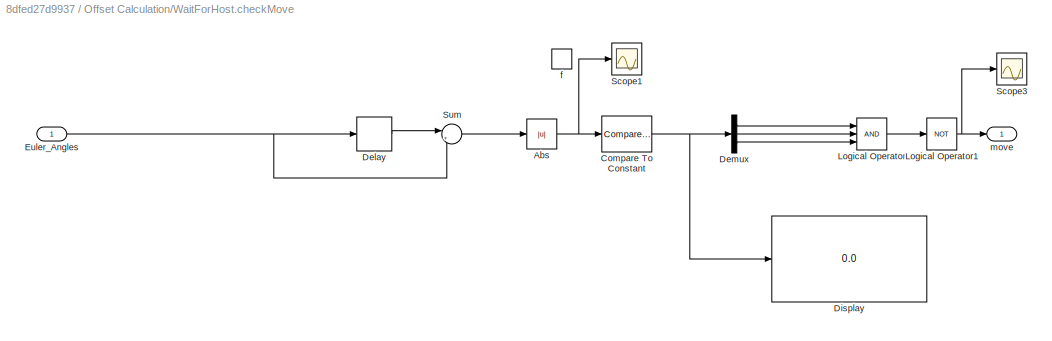
BLOCK [SubSystem] Offset Calculation/WaitForHost.checkMove
  Ports = [1, 1, 0, 1]
  PreDeleteFcn = Stateflow.SLINSF.SimulinkMan.removePreDeleteFcn
  RequestExecContextInheritance = off
  UndoDeleteFcn = Stateflow.SLINSF.SimulinkMan.restorePreDeleteFcn
BLOCK [Abs] Offset Calculation/WaitForHost.checkMove/Abs
  SaturateOnIntegerOverflow = off
BLOCK [Reference] Offset Calculation/WaitForHost.checkMove/Compare To Constant  REF=simulink/Logic and Bit
Operations/Compare
To Constant
  OutDataTypeStr = boolean
  Ports = [1, 1]
  SourceBlock = simulink/Logic and Bit\nOperations/Compare\nTo Constant
  SourceType = Compare To Constant
  ZeroCross = on
  const = 50
  relop = <
BLOCK [Delay] Offset Calculation/WaitForHost.checkMove/Delay
  DelayLength = 40
  InitialCondition = inf
  InputPortMap = u0
  Ports = [1, 1]
BLOCK [Demux] Offset Calculation/WaitForHost.checkMove/Demux
  DisplayOption = bar
  Outputs = 3
  Ports = [1, 3]
BLOCK [Display] Offset Calculation/WaitForHost.checkMove/Display
  Decimation = 1
  Ports = [1]
BLOCK [Inport] Offset Calculation/WaitForHost.checkMove/Euler_Angles
  IconDisplay = Port number
  OutDataTypeStr = double
  PortDimensions = 3
  SignalType = real
  VarSizeSig = No
BLOCK [Logic] Offset Calculation/WaitForHost.checkMove/Logical Operator
  AllPortsSameDT = off
  Inputs = 3
  OutDataTypeStr = boolean
  Ports = [3, 1]
BLOCK [Logic] Offset Calculation/WaitForHost.checkMove/Logical Operator1
  AllPortsSameDT = off
  Operator = NOT
  OutDataTypeStr = boolean
  Ports = [1, 1]
BLOCK [Scope] Offset Calculation/WaitForHost.checkMove/Scope1
  DataFormat = StructureWithTime
  Floating = off
  LimitDataPoints = off
  NumInputPorts = 1
  Ports = [1]
  SaveName = Difference
  SaveToWorkspace = on
  ShowLegends = off
BLOCK [Scope] Offset Calculation/WaitForHost.checkMove/Scope3
  DataFormat = StructureWithTime
  Floating = off
  LimitDataPoints = off
  NumInputPorts = 1
  Ports = [1]
  SaveName = Move
  SaveToWorkspace = on
  ShowLegends = off
BLOCK [Sum] Offset Calculation/WaitForHost.checkMove/Sum
  IconShape = round
  InputSameDT = off
  Inputs = |+-
  OutDataTypeStr = Inherit: Inherit via internal rule
  Ports = [2, 1]
  SaturateOnIntegerOverflow = off
BLOCK [TriggerPort] Offset Calculation/WaitForHost.checkMove/f
  CopyFcn = Stateflow.SLINSF.SimulinkMan.removeBlockPreDeleteFcn
  Ports = []
  PreDeleteFcn = Stateflow.SLINSF.SimulinkMan.unsafePredeleteFcn
  StatesWhenEnabling = held
  TriggerType = function-call
BLOCK [Outport] Offset Calculation/WaitForHost.checkMove/move
  IconDisplay = Port number
ANNOTATION Measures for Offset_Calculation/CheckSum Pre-Processing/Magnetometer/Process Raw Mag Data: magnetometer[ 0 ] = - ( float ) navdata.mx ; magnetometer[ 1 ] = ( float ) navdata.my ; magnetometer[ 2 ] = - ( float ) navdata.mz ; const float Sensitivity[ 3 ] = { 0.0071492608 , 0.0070882491 , 0.0074057781 } ; const float Neutral[ 3 ] = { 118.0 , - 65.0 , 110.0 } ;
ANNOTATION Measures for Offset_Calculation/CheckSum Pre-Processing/RateGyro Processing/Process Data: const float Sensitivity[ 3 ] = { 0.0609 , 0.0609 , 0.0609 } ; const float Neutral[ 3 ] = { 0.0 , 0.0 , 0.0 } ; const int16_t Offset[ 3 ] = { - 73 , 14 , - 13 } ; const int16_t Noises[ 3 ] = { 35 , 35 , 15 } ; int16_t vRaws[ 3 ] = { Navdata :: IMU :: Gyroscope :: getRawX (), Navdata :: IMU :: Gyroscope :: getRawY (), Navdata :: IMU :: Gyroscope :: getRawZ () } ; gyroscope[i] = vRaws[i] * Gyroscope ...<+34ch>
ANNOTATION Measures for Offset_Calculation/CheckSum Pre-Processing/TempFilter/Process Raw Mag Data: magnetometer[ 0 ] = - ( float ) navdata.mx ; magnetometer[ 1 ] = ( float ) navdata.my ; magnetometer[ 2 ] = - ( float ) navdata.mz ; const float Sensitivity[ 3 ] = { 0.0071492608 , 0.0070882491 , 0.0074057781 } ; const float Neutral[ 3 ] = { 118.0 , - 65.0 , 110.0 } ;
ANNOTATION Measures for Offset_Calculation/CheckSum Pre-Processing/Ultrasound Processing: '192.168.1.1' 1 17725
ANNOTATION Measures for Offset_Calculation/Data Conversion and Measurement Calculation/Calculate Gravity Vector/Accelerometer Neutral Gain and Offset: (1/512)g /LSB
ANNOTATION Measures for Offset_Calculation/Data Conversion and Measurement Calculation/Calculate Gravity Vector/Accelerometer Neutral Gain and Offset: All axes were invereted here, both implementations in paparazzi and student team seem to do this
ANNOTATION Measures for Offset_Calculation/Data Conversion and Measurement Calculation/Calibration_Scale_and_Offset/Process Raw Mag Data/Process Raw Mag Data (Home_330453): magnetometer[ 0 ] = - ( float ) navdata.mx ; magnetometer[ 1 ] = ( float ) navdata.my ; magnetometer[ 2 ] = - ( float ) navdata.mz ; const float Sensitivity[ 3 ] = { 0.0071492608 , 0.0070882491 , 0.0074057781 } ; const float Neutral[ 3 ] = { 118.0 , - 65.0 , 110.0 } ;
ANNOTATION Measures for Offset_Calculation/Data Conversion and Measurement Calculation/Calibration_Scale_and_Offset/Process Raw Mag Data/Process Raw Mag Data (Work_255725): 158 145 136
ANNOTATION Measures for Offset_Calculation/Data Conversion and Measurement Calculation/Calibration_Scale_and_Offset/Process Raw Mag Data/Process Raw Mag Data (Work_255725): magnetometer[ 0 ] = - ( float ) navdata.mx ; magnetometer[ 1 ] = ( float ) navdata.my ; magnetometer[ 2 ] = - ( float ) navdata.mz ; const float Sensitivity[ 3 ] = { 0.0071492608 , 0.0070882491 , 0.0074057781 } ; const float Neutral[ 3 ] = { 118.0 , - 65.0 , 110.0 } ;
LINE Inertial Measurement:1 -> Measures for Offset_Calculation:1
LINE Inertial Measurement:2 -> Measures for Offset_Calculation:2
LINE Measures for Offset_Calculation:1 -> Offset Calculation:1
LINE Measures for Offset_Calculation:2 -> Offset Calculation:2
LINE Offset Calculation:1 -> Accelerometer_Offset_Values:1
LINE Offset Calculation:2 -> Gyrometer_Offset_Values:1
